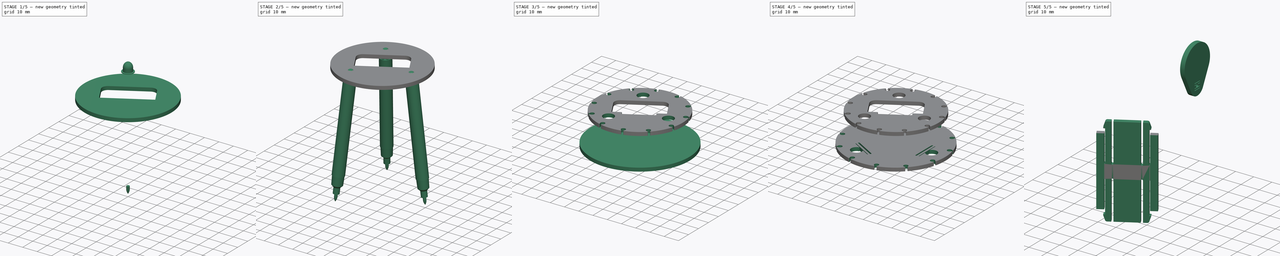
[diagram: build sequence overview — one tinted view per stage of 5, left to right]
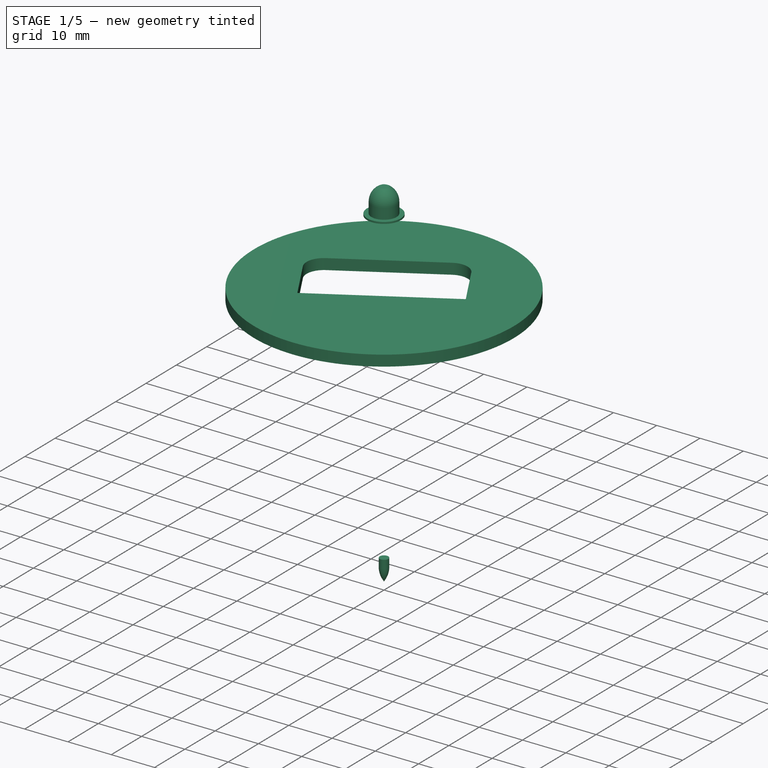
[diagram: stage 1 of 5 — iso view after this stage's code; geometry added in this stage tinted green]
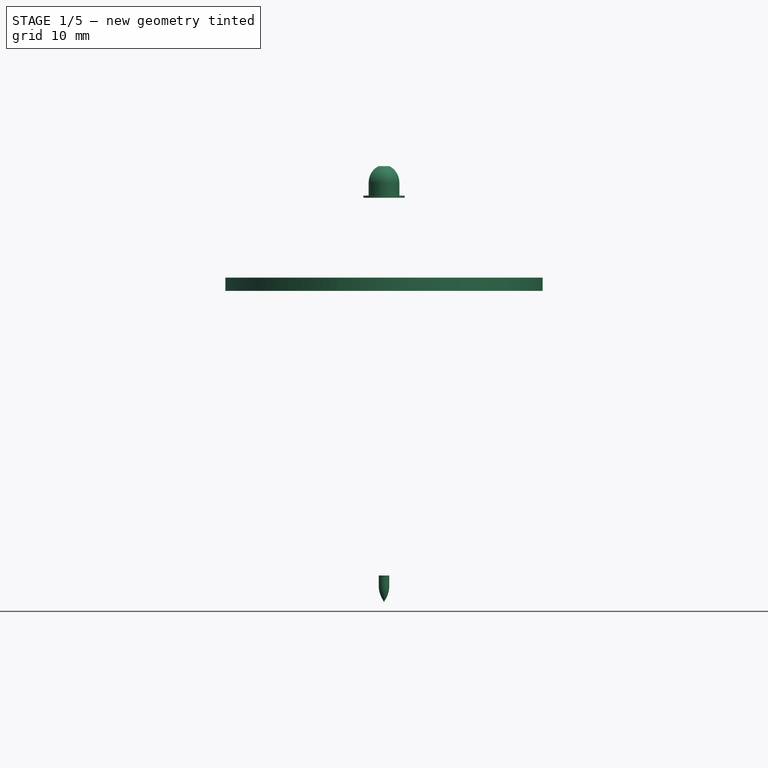
[diagram: stage 1 of 5 — front view after this stage's code; geometry added in this stage tinted green]
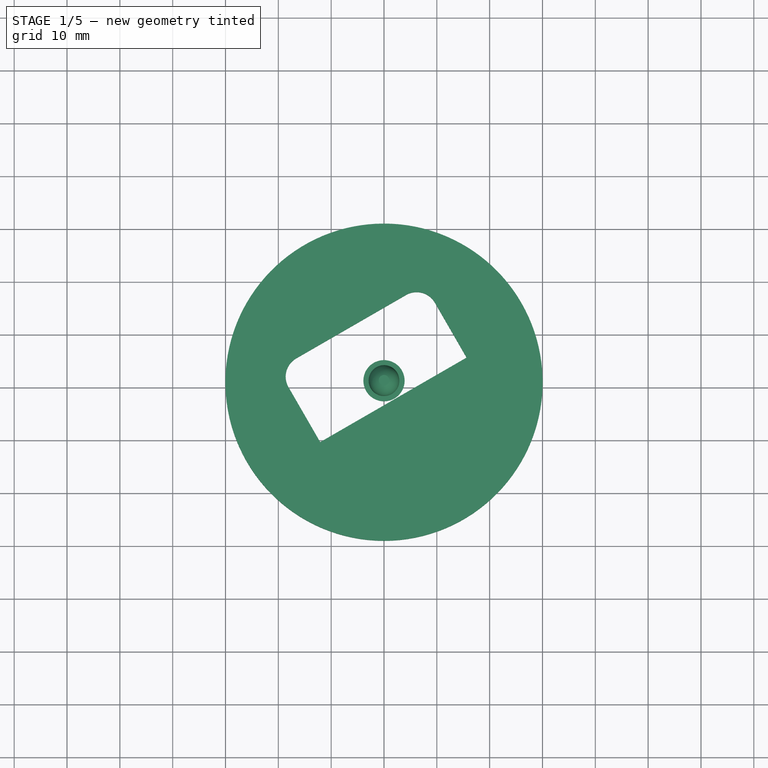
[diagram: stage 1 of 5 — top view after this stage's code; geometry added in this stage tinted green]
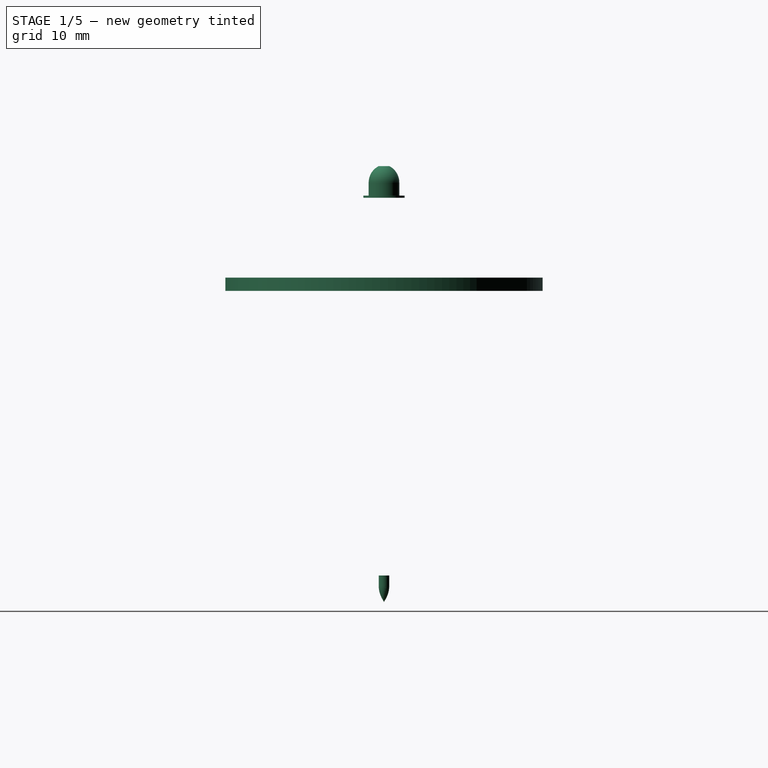
[diagram: stage 1 of 5 — right view after this stage's code; geometry added in this stage tinted green]
FCSTD DOCUMENT  (FreeCAD 0.21R33771 (Git))
Label: vibro_monster_AA
License: CERN Open Hardware Licence permissive
LicenseURL: https://cern-ohl.web.cern.ch/
objects: Sketcher::SketchObject×19, PartDesign::SubShapeBinder×10, PartDesign::Pocket×10, PartDesign::Body×9, PartDesign::Revolution×6, Part::Feature×6, Part::Part2DObjectPython×6, PartDesign::Fillet×4, TechDraw::DrawProjGroupItem×4, PartDesign::Pad×3, PartDesign::PolarPattern×3, App::Part×3, PartDesign::Boolean×1, Part::FeaturePython×1, TechDraw::DrawSVGTemplate×1, Spreadsheet::Sheet×1, TechDraw::DrawProjGroup×1, TechDraw::DrawPage×1, App::DocumentObjectGroup×1
note: 100 computed .brp shape members not serialized (recipe doc carries the construction recipe); baked Part::Feature solids carry a one-line shape summary decoded from their .brp

FEATURE [Sketcher::SketchObject] Sketch
  FullyConstrained = true
  MapMode = 5
  Placement = pos=(0,0,0) rot=(1,0,0;1.5708rad)
  Support = -> [XZ_Plane]
  sketch-geometry (9):
    g0: LineSegment StartX=0 StartY=82.365 StartZ=0 EndX=-27.5572 EndY=82.365 EndZ=0
    g1: LineSegment StartX=-27.5572 StartY=82.365 StartZ=0 EndX=-26.5 EndY=91.365 EndZ=0
    g2: LineSegment StartX=-26.5 StartY=91.365 StartZ=0 EndX=-27.5 EndY=91.365 EndZ=0
    g3: LineSegment StartX=-27.5 StartY=91.365 StartZ=0 EndX=-38 EndY=1.97956 EndZ=0
    g4: LineSegment StartX=-37.1295 StartY=0.877301 StartZ=0 EndX=-27.6747 EndY=81.365 EndZ=0
    g5: LineSegment StartX=-27.6747 StartY=81.365 StartZ=0 EndX=0 EndY=81.365 EndZ=0
    g6: LineSegment StartX=0 StartY=81.365 StartZ=0 EndX=0 EndY=82.365 EndZ=0
    g7: LineSegment StartX=-27.5572 StartY=82.365 StartZ=0 EndX=-27.6747 EndY=81.365 EndZ=0
    g8: ArcOfCircle CenterX=-38.1159 CenterY=0.993171 CenterZ=0 NormalX=0 NormalY=0 NormalZ=1 AngleXU=0 Radius=0.993171 StartAngle=1.45386 EndAngle=6.16625
  constraints (26):
    c: PointOnObject(g0,g-2)
    c: Horizontal(g0)
    c: Coincident(g0,g1)
    c: Coincident(g1,g2)
    c: Horizontal(g2)
    c: Coincident(g4,g5)
    c: Horizontal(g5)
    c: Coincident(g5,g6)
    c: Coincident(g6,g0)
    c: Vertical(g6)
    c: DistanceX(g2) = -27.5
    c: DistanceX(g2,g2) = 1
    c: Parallel(g3,g1)
    c: Parallel(g4,g3)
    c: Coincident(g7,g0)
    c: Coincident(g7,g4)
    c: Parallel(g7,g1)
    c: Distance(g1,g0) = 9
    c: DistanceY(g6,g6) = 1
    c: Coincident(g2,g3)
    c: Coincident(g8,g3)
    c: Tangent(g8,g-1)
    c: Tangent(g8,g4) = -1.5708
    c: Perpendicular(g8,g3)
    c: Distance(g3) = 90
    c: DistanceX(g3,g-1) = 38
FEATURE [PartDesign::Revolution] Revolution
  Angle = 360
  Axis = (0,2e-16,1)
  Base = (0,0,0)
  Placement = pos=(0,0,0) rot=(1,0,0;1.5708rad)
  Profile = -> Sketch
  ReferenceAxis = -> Sketch [V_Axis]
FEATURE [PartDesign::Body] Body001
  Group = -> [Sketch014,Revolution001]
  Origin = -> Origin001
  Tip = -> Revolution001
FEATURE [Sketcher::SketchObject] Sketch001
  FullyConstrained = true
  MapMode = 5
  Placement = pos=(0,0,0) rot=(0.57735,0.57735,0.57735;2.0944rad)
  Support = -> [YZ_Plane002]
  sketch-geometry (5):
    g0: LineSegment StartX=0 StartY=5 StartZ=0 EndX=0 EndY=0 EndZ=0
    g1: LineSegment StartX=0 StartY=0 StartZ=0 EndX=-0.330127 EndY=0.571797 EndZ=0
    g2: ArcOfCircle CenterX=4 CenterY=3.0718 CenterZ=0 NormalX=0 NormalY=0 NormalZ=1 AngleXU=0 Radius=5 StartAngle=3.14159 EndAngle=3.66519
    g3: LineSegment StartX=-1 StartY=3.0718 StartZ=0 EndX=-1 EndY=5 EndZ=0
    g4: LineSegment StartX=-1 StartY=5 StartZ=0 EndX=0 EndY=5 EndZ=0
  constraints (13):
    c: PointOnObject(g0,g-2)
    c: Coincident(g0,g-1)
    c: Coincident(g0,g1)
    c: Tangent(g1,g2) = 1.5708
    c: Vertical(g3)
    c: Coincident(g3,g4)
    c: Coincident(g4,g0)
    c: Horizontal(g4)
    c: DistanceY(g0,g0) = 5
    c: DistanceX(g4,g4) = 1
    c: Tangent(g2,g3) = 1.5708
    c: Angle(g0,g1) = 0.523599
    c: Radius(g2) = 5
FEATURE [PartDesign::Revolution] Revolution002
  Angle = 360
  Axis = (-2e-16,3e-16,1)
  Base = (0,0,0)
  Placement = pos=(0,0,0) rot=(0.57735,0.57735,0.57735;2.0944rad)
  Profile = -> Sketch001
  ReferenceAxis = -> Sketch001 [V_Axis]
FEATURE [PartDesign::Body] Body002  label="tip"
  Group = -> [Sketch001,Revolution002]
  Origin = -> Origin002
  Tip = -> Revolution002
FEATURE [Sketcher::SketchObject] Sketch002
  FullyConstrained = true
  MapMode = 5
  Placement = pos=(0,0,0) rot=(1,0,0;1.5708rad)
  Support = -> [XZ_Plane003]
  sketch-geometry (7):
    g0: LineSegment StartX=0 StartY=76.5 StartZ=0 EndX=-3.9 EndY=76.5 EndZ=0
    g1: LineSegment StartX=-3.9 StartY=76.5 StartZ=0 EndX=-3.9 EndY=76.9 EndZ=0
    g2: LineSegment StartX=-3.9 StartY=76.9 StartZ=0 EndX=-2.9 EndY=76.9 EndZ=0
    g3: LineSegment StartX=-2.9 StartY=76.9 StartZ=0 EndX=-2.9 EndY=79.4 EndZ=0
    g4: ArcOfCircle CenterX=0.578947 CenterY=79.4 CenterZ=0 NormalX=0 NormalY=0 NormalZ=1 AngleXU=0 Radius=3.47895 StartAngle=2.04189 EndAngle=3.14159
    g5: LineSegment StartX=-1 StartY=82.5 StartZ=0 EndX=0 EndY=82.5 EndZ=0
    g6: LineSegment StartX=0 StartY=82.5 StartZ=0 EndX=0 EndY=76.5 EndZ=0
  constraints (21):
    c: PointOnObject(g0,g-2)
    c: Horizontal(g0)
    c: Coincident(g0,g1)
    c: Vertical(g1)
    c: Coincident(g1,g2)
    c: Horizontal(g2)
    c: Coincident(g2,g3)
    c: Vertical(g3)
    c: PointOnObject(g5,g-2)
    c: Horizontal(g5)
    c: Coincident(g5,g6)
    c: Coincident(g6,g0)
    c: DistanceX(g0,g0) = 3.9
    c: DistanceY(g1,g1) = 0.4
    c: DistanceX(g2,g2) = 1
    c: DistanceY(g6,g6) = 6
    c: DistanceY(g-1,g0) = 76.5
    c: DistanceX(g5,g5) = 1
    c: Coincident(g4,g5)
    c: Tangent(g4,g3) = 1.5708
    c: DistanceY(g3,g3) = 2.5
FEATURE [PartDesign::Revolution] Revolution003
  Angle = 360
  Axis = (0,-2e-16,1)
  Base = (0,0,0)
  Placement = pos=(0,0,0) rot=(1,0,0;1.5708rad)
  Profile = -> Sketch002
  ReferenceAxis = -> Sketch002 [V_Axis]
FEATURE [PartDesign::Body] Body010  label="UnBalancer"
  Group = -> [Binder002,Sketch020,Pad002]
  Origin = -> Origin014
  Tip = -> Pad002
FEATURE [PartDesign::SubShapeBinder] Binder003
  BindCopyOnChange = 0
  BindMode = 0
  ClaimChildren = false
  Context = -> Body011 [Binder003.]
  Fuse = false
  MakeFace = true
  OffsetFill = false
  OffsetIntersection = false
  OffsetJoinType = 0
  OffsetOpenResult = false
  PartialLoad = false
  Relative = true
  Support = -> [Body]
  _Version = 2
FEATURE [PartDesign::SubShapeBinder] Binder004
  BindCopyOnChange = 0
  BindMode = 0
  ClaimChildren = false
  Context = -> Body011 [Binder004.]
  Fuse = false
  MakeFace = true
  OffsetFill = false
  OffsetIntersection = false
  OffsetJoinType = 0
  OffsetOpenResult = false
  PartialLoad = false
  Relative = true
  Support = -> [Array]
  _Version = 2
FEATURE [Sketcher::SketchObject] Sketch021
  ExternalGeometry = -> [Binder003]
  FullyConstrained = true
  MapMode = 5
  Placement = pos=(0,0,0) rot=(0.57735,0.57735,0.57735;2.0944rad)
  Support = -> [YZ_Plane015]
  expr: Constraints[8] = Spreadsheet.ply_thickness
  sketch-geometry (5):
    g0: LineSegment StartX=-30.0226 StartY=61.3773 StartZ=0 EndX=0 EndY=61.3773 EndZ=0
    g1: LineSegment StartX=0 StartY=61.3773 StartZ=0 EndX=0 EndY=58.8773 EndZ=0
    g2: LineSegment StartX=0 StartY=58.8773 StartZ=0 EndX=-30.0226 EndY=58.8773 EndZ=0
    g3: LineSegment StartX=-30.0226 StartY=58.8773 StartZ=0 EndX=-30.0226 EndY=61.3773 EndZ=0
    g4: LineSegment StartX=-37.1295 StartY=0.877301 StartZ=0 EndX=-27.6747 EndY=81.365 EndZ=0
  constraints (14):
    c: Coincident(g0,g1)
    c: Coincident(g1,g2)
    c: Coincident(g2,g3)
    c: Coincident(g3,g0)
    c: Horizontal(g0)
    c: Horizontal(g2)
    c: Vertical(g1)
    c: Vertical(g3)
    c: DistanceY(g1,g1) = 2.5
    c: PointOnObject(g0,g-2)
    c: PointOnObject(g0,g4)
    c: Coincident(g-4,g4)
    c: Coincident(g4,g-3)
    c: Distance(g1,g-3) = 58
FEATURE [PartDesign::Revolution] Revolution008
  Angle = 360
  Axis = (-2e-16,3e-16,1)
  Base = (0,0,0)
  Placement = pos=(0,0,0) rot=(0.57735,0.57735,0.57735;2.0944rad)
  Profile = -> Sketch021
  ReferenceAxis = -> Sketch021 [V_Axis]
FEATURE [Sketcher::SketchObject] Sketch027
  FullyConstrained = true
  MapMode = 5
  Placement = pos=(0,3.62e-14,82.365) rot=(0,0,1;3.14159rad)
  Support = -> [Revolution]
  sketch-geometry (1):
    g0: Circle CenterX=0 CenterY=0 CenterZ=0 NormalX=0 NormalY=0 NormalZ=1 AngleXU=0 Radius=5
  constraints (2):
    c: Diameter(g0) = 10
    c: Coincident(g-1,g0)
FEATURE [PartDesign::Pocket] Pocket004
  BaseFeature = -> Revolution
  Direction = (0,-4e-16,-1)
  Length = 5
  Length2 = 5
  Placement = pos=(0,0,0) rot=(1,0,0;1.5708rad)
  Profile = -> Sketch027
  ReferenceAxis = -> Sketch027 [N_Axis]
  Type = 1
FEATURE [Sketcher::SketchObject] Sketch024
  FullyConstrained = true
  MapMode = 5
  Placement = pos=(0,0,41) rot=(0,0,1;3.14159rad)
  Support = -> [Revolution004]
  sketch-geometry (12):
    g0: ArcOfCircle CenterX=-25 CenterY=0 CenterZ=0 NormalX=0 NormalY=0 NormalZ=1 AngleXU=0 Radius=3.8 StartAngle=0.462955 EndAngle=5.82023
    g1: ArcOfCircle CenterX=-25 CenterY=-1e-16 CenterZ=0 NormalX=0 NormalY=0 NormalZ=1 AngleXU=0 Radius=3.8 StartAngle=5.82023 EndAngle=6.74614
    g2: LineSegment StartX=-21.6 StartY=-1.69706 StartZ=0 EndX=-21.6 EndY=1.69706 EndZ=0
    g3: LineSegment StartX=-21.6 StartY=-8e-16 StartZ=0 EndX=-21.2 EndY=-8e-16 EndZ=0
    g4: LineSegment StartX=-21.6 StartY=1.69706 StartZ=0 EndX=9.33031 EndY=19.5547 EndZ=0
    g5: LineSegment StartX=9.33031 StartY=19.5547 StartZ=0 EndX=12.2697 EndY=17.8576 EndZ=0
    g6: LineSegment StartX=12.2697 StartY=17.8576 StartZ=0 EndX=12.2697 EndY=-17.8576 EndZ=0
    g7: LineSegment StartX=12.2697 StartY=-17.8576 StartZ=0 EndX=9.33031 EndY=-19.5547 EndZ=0
    g8: LineSegment StartX=9.33031 StartY=-19.5547 StartZ=0 EndX=-21.6 EndY=-1.69706 EndZ=0
    g9: ArcOfCircle CenterX=12.5 CenterY=21.6506 CenterZ=0 NormalX=0 NormalY=0 NormalZ=1 AngleXU=0 Radius=3.8 StartAngle=4.65174 EndAngle=10.009
    g10: ArcOfCircle CenterX=12.5 CenterY=-21.6506 CenterZ=0 NormalX=0 NormalY=0 NormalZ=1 AngleXU=0 Radius=3.8 StartAngle=2.55735 EndAngle=7.91463
    g11: Circle CenterX=0 CenterY=0 CenterZ=0 NormalX=0 NormalY=0 NormalZ=1 AngleXU=0 Radius=25
  constraints (34):
    c: Diameter(g0) = 7.6
    c: Tangent(g1,g0) = -1.5708
    c: Coincident(g0,g1)
    c: Coincident(g2,g0)
    c: Coincident(g2,g0)
    c: PointOnObject(g3,g1)
    c: Symmetric(g0,g0,g3)
    c: Perpendicular(g3,g2)
    c: Distance(g3) = 0.4
    c: PointOnObject(g0,g-1)
    c: Vertical(g2)
    c: Coincident(g4,g0)
    c: Coincident(g5,g4)
    c: Coincident(g6,g5)
    c: Coincident(g7,g6)
    c: Coincident(g8,g7)
    c: Coincident(g8,g0)
    c: Angle(g8,g4) = 1.0472
    c: Angle(g4,g6) = 1.0472
    c: Equal(g2,g5)
    c: Equal(g5,g7)
    c: Equal(g4,g8)
    c: Equal(g8,g6)
    c: Vertical(g6)
    c: Coincident(g11,g-1)
    c: Radius(g11) = 25
    c: PointOnObject(g0,g11)
    c: PointOnObject(g9,g11)
    c: PointOnObject(g10,g11)
    c: Equal(g9,g0)
    c: Coincident(g10,g7)
    c: Coincident(g10,g7)
    c: Coincident(g9,g5)
    c: Coincident(g9,g5)
FEATURE [PartDesign::SubShapeBinder] Binder008
  BindCopyOnChange = 0
  BindMode = 0
  ClaimChildren = false
  Context = -> Body011 [Binder008.]
  Fuse = false
  MakeFace = true
  OffsetFill = false
  OffsetIntersection = false
  OffsetJoinType = 0
  OffsetOpenResult = false
  PartialLoad = false
  Relative = true
  Support = -> [Part__Feature014]
  _Version = 2
FEATURE [Sketcher::SketchObject] Sketch022
  ExternalGeometry = -> [Binder008]
  FullyConstrained = true
  MapMode = 5
  Placement = pos=(-2.7e-14,1.72e-14,61.3773) rot=(0,0,-1;1.5708rad)
  Support = -> [Revolution008]
  sketch-geometry (7):
    g0: LineSegment StartX=-15.0474 StartY=9.6375 StartZ=0 EndX=-4.65506 EndY=15.6375 EndZ=0
    g1: LineSegment StartX=-4.65506 StartY=15.6375 StartZ=0 EndX=11.3449 EndY=-12.0753 EndZ=0
    g2: LineSegment StartX=11.3449 StartY=-12.0753 StartZ=0 EndX=0.952632 EndY=-18.0753 EndZ=0
    g3: ArcOfCircle CenterX=-1.04737 CenterY=-14.6112 CenterZ=0 NormalX=0 NormalY=0 NormalZ=1 AngleXU=0 Radius=4 StartAngle=3.66519 EndAngle=5.23599
    g4: LineSegment StartX=-4.51147 StartY=-16.6112 StartZ=0 EndX=-16.5115 EndY=4.17339 EndZ=0
    g5: ArcOfCircle CenterX=-13.0474 CenterY=6.17339 CenterZ=0 NormalX=0 NormalY=0 NormalZ=1 AngleXU=0 Radius=4 StartAngle=2.0944 EndAngle=3.66519
    g6: LineSegment StartX=3.34494 StartY=1.78109 StartZ=0 EndX=2.47891 EndY=1.28109 EndZ=0
  constraints (18):
    c: Tangent(g2,g3) = 1.5708
    c: Tangent(g4,g5) = 1.5708
    c: Tangent(g3,g4) = 1.5708
    c: Tangent(g5,g0) = 1.5708
    c: Coincident(g0,g1)
    c: Coincident(g1,g2)
    c: Equal(g3,g5)
    c: Radius(g5) = 4
    c: Perpendicular(g1,g2)
    c: Perpendicular(g1,g0)
    c: Perpendicular(g4,g0)
    c: Distance(g1) = 32
    c: Distance(g4,g1) = 16
    c: Parallel(g1,g-3)
    c: Perpendicular(g6,g1)
    c: Symmetric(g0,g1,g6)
    c: Symmetric(g-3,g-3,g6)
    c: Distance(g6) = 1
FEATURE [PartDesign::Pocket] Pocket
  BaseFeature = -> Revolution008
  Direction = (6e-16,-4e-16,-1)
  Length = 5
  Length2 = 5
  Placement = pos=(0,0,0) rot=(0.57735,0.57735,0.57735;2.0944rad)
  Profile = -> Sketch022
  ReferenceAxis = -> Sketch022 [N_Axis]
  Type = 1
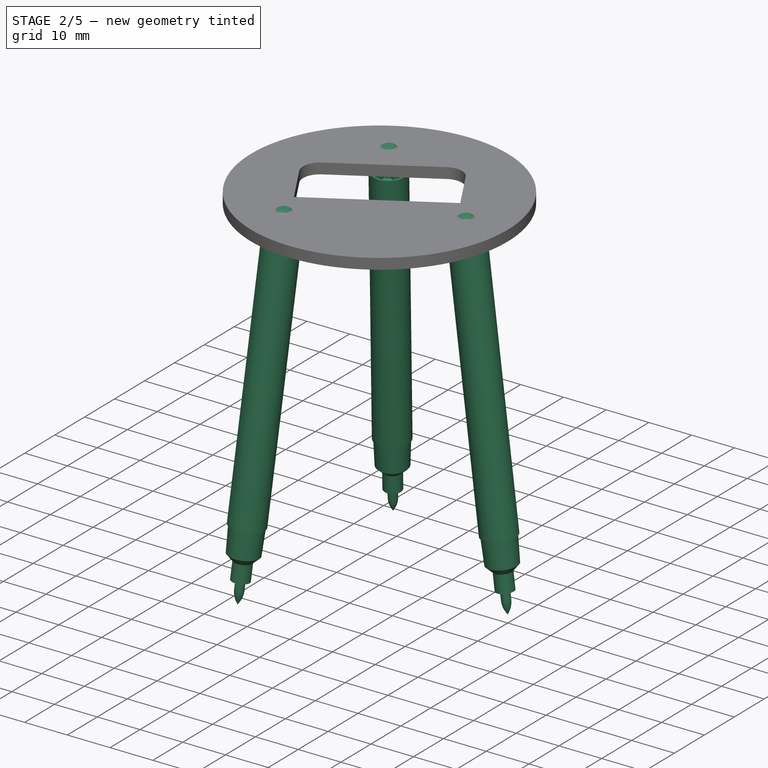
[diagram: stage 2 of 5 — iso view after this stage's code; geometry added in this stage tinted green]
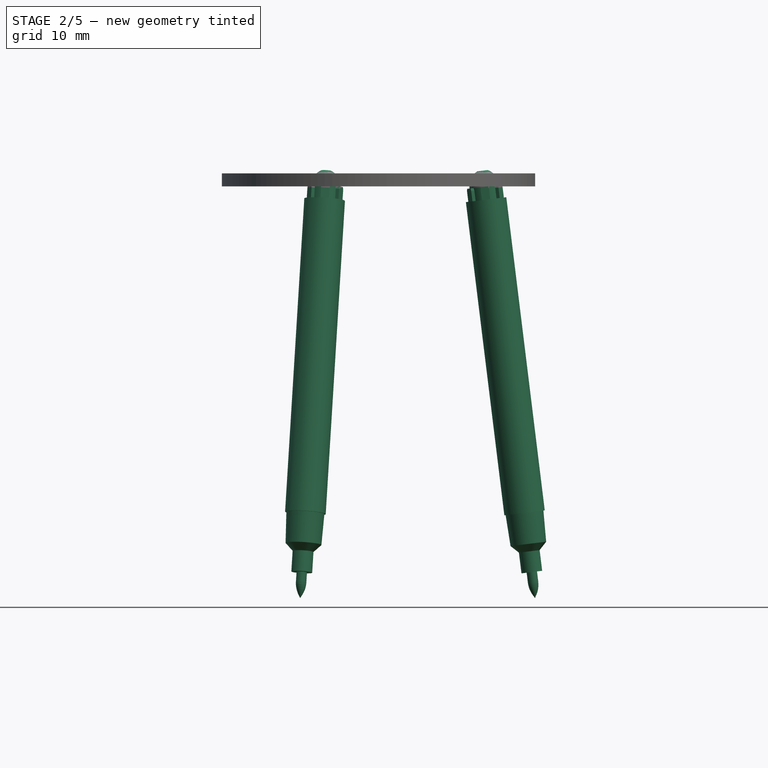
[diagram: stage 2 of 5 — front view after this stage's code; geometry added in this stage tinted green]
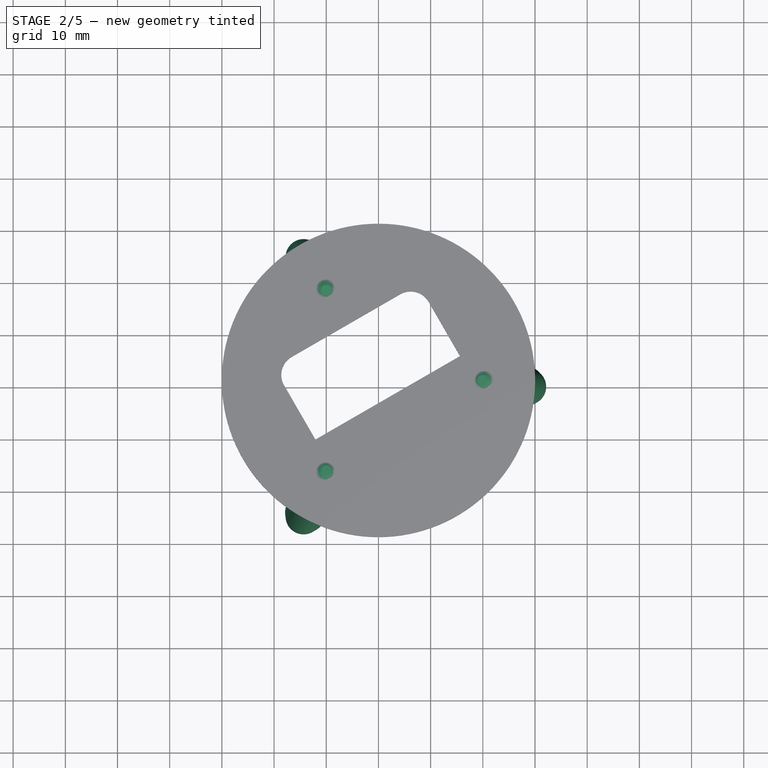
[diagram: stage 2 of 5 — top view after this stage's code; geometry added in this stage tinted green]
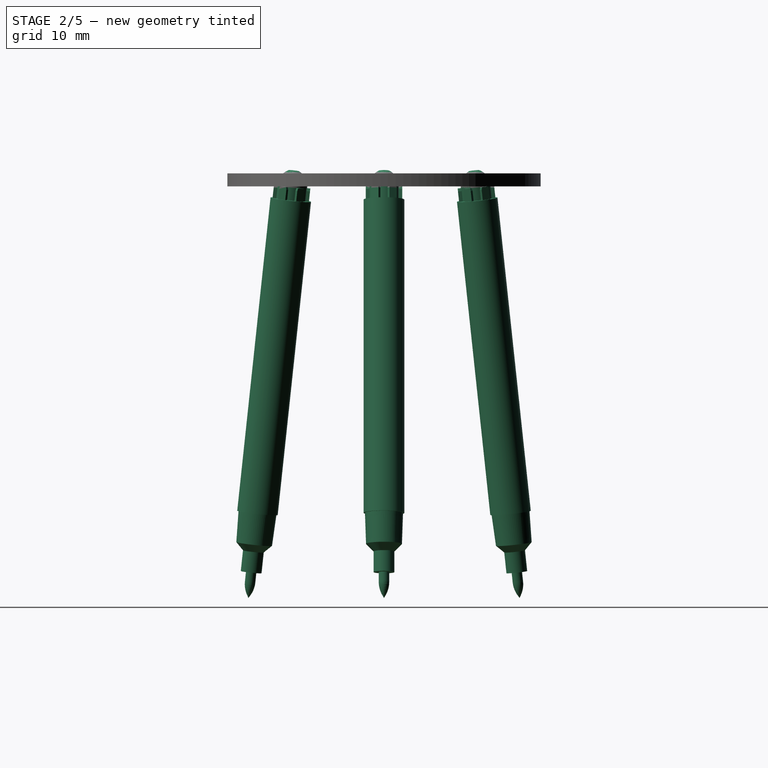
[diagram: stage 2 of 5 — right view after this stage's code; geometry added in this stage tinted green]
FEATURE [Sketcher::SketchObject] Sketch014
  FullyConstrained = true
  MapMode = 5
  Placement = pos=(0,0,0) rot=(1,0,0;1.5708rad)
  Support = -> [XZ_Plane001]
  sketch-geometry (9):
    g0: LineSegment StartX=0 StartY=76.5 StartZ=0 EndX=-3.9 EndY=76.5 EndZ=0
    g1: LineSegment StartX=-3.9 StartY=76.5 StartZ=0 EndX=-3.9 EndY=16.4369 EndZ=0
    g2: LineSegment StartX=-3.9 StartY=16.4369 StartZ=0 EndX=-3.65 EndY=16.4369 EndZ=0
    g3: LineSegment StartX=-3.65 StartY=16.4369 StartZ=0 EndX=-3.4406 EndY=10.4406 EndZ=0
    g4: LineSegment StartX=-3.4406 StartY=10.4406 StartZ=0 EndX=-2 EndY=9 EndZ=0
    g5: LineSegment StartX=-2 StartY=9 StartZ=0 EndX=-2 EndY=5 EndZ=0
    g6: LineSegment StartX=-2 StartY=5 StartZ=0 EndX=0 EndY=5 EndZ=0
    g7: LineSegment StartX=0 StartY=5 StartZ=0 EndX=0 EndY=76.5 EndZ=0
    g8: LineSegment StartX=0 StartY=5 StartZ=0 EndX=0 EndY=0 EndZ=0
  constraints (26):
    c: PointOnObject(g0,g-2)
    c: Horizontal(g0)
    c: Coincident(g0,g1)
    c: Vertical(g1)
    c: Coincident(g1,g2)
    c: Horizontal(g2)
    c: Coincident(g2,g3)
    c: Coincident(g3,g4)
    c: Coincident(g4,g5)
    c: Vertical(g5)
    c: Coincident(g5,g6)
    c: PointOnObject(g6,g-2)
    c: Horizontal(g6)
    c: Coincident(g6,g7)
    c: Coincident(g7,g0)
    c: DistanceX(g0,g0) = 3.9
    c: DistanceX(g2,g2) = 0.25
    c: DistanceX(g6,g6) = 2
    c: DistanceY(g5,g5) = 4
    c: Distance(g3) = 6
    c: Angle(g4,g5) = 2.35619
    c: Angle(g2,g3) = 1.6057
    c: Coincident(g8,g6)
    c: Coincident(g-1,g8)
    c: DistanceY(g8,g8) = 5
    c: DistanceY(g8,g0) = 76.5
FEATURE [PartDesign::Revolution] Revolution001
  Angle = 360
  Axis = (0,-2e-16,1)
  Base = (0,0,0)
  Placement = pos=(0,0,0) rot=(1,0,0;1.5708rad)
  Profile = -> Sketch014
  ReferenceAxis = -> Sketch014 [V_Axis]
FEATURE [Sketcher::SketchObject] Sketch003
  ExternalGeometry = -> [Revolution003]
  FullyConstrained = true
  MapMode = 5
  Placement = pos=(0,0,0) rot=(1,0,0;1.5708rad)
  Support = -> [XZ_Plane003]
  sketch-geometry (6):
    g0: LineSegment StartX=-0.8 StartY=76.9 StartZ=0 EndX=0.8 EndY=76.9 EndZ=0
    g1: LineSegment StartX=0.8 StartY=76.9 StartZ=0 EndX=0.8 EndY=78.9 EndZ=0
    g2: LineSegment StartX=0.8 StartY=78.9 StartZ=0 EndX=0.666025 EndY=79.4 EndZ=0
    g3: LineSegment StartX=0.666025 StartY=79.4 StartZ=0 EndX=-0.666025 EndY=79.4 EndZ=0
    g4: LineSegment StartX=-0.666025 StartY=79.4 StartZ=0 EndX=-0.8 EndY=78.9 EndZ=0
    g5: LineSegment StartX=-0.8 StartY=78.9 StartZ=0 EndX=-0.8 EndY=76.9 EndZ=0
  constraints (17):
    c: Coincident(g0,g1)
    c: Vertical(g1)
    c: Coincident(g1,g2)
    c: Coincident(g2,g3)
    c: Coincident(g3,g4)
    c: Coincident(g4,g5)
    c: Coincident(g5,g0)
    c: Vertical(g5)
    c: Symmetric(g0,g0,g-2)
    c: PointOnObject(g0,g-3)
    c: Symmetric(g3,g2,g-2)
    c: DistanceX(g0,g0) = 1.6
    c: Angle(g5,g4) = 2.87979
    c: Equal(g5,g1)
    c: DistanceY(g1,g1) = 2
    c: PointOnObject(g3,g-4)
    c: DistanceX(g-3,g-3) = 7.8
FEATURE [PartDesign::Pad] Pad
  BaseFeature = -> Revolution003
  Direction = (0,-1,-2e-16)
  Length = 3.5
  Length2 = 10
  Placement = pos=(0,0,0) rot=(1,0,0;1.5708rad)
  Profile = -> Sketch003
  ReferenceAxis = -> Sketch003 [N_Axis]
  Type = 0
FEATURE [PartDesign::PolarPattern] PolarPattern
  Angle = 360
  Axis = -> Sketch003 [V_Axis]
  BaseFeature = -> Pad
  Occurrences = 6
  Originals = -> [Pad]
  Placement = pos=(0,0,0) rot=(1,0,0;1.5708rad)
FEATURE [PartDesign::Body] Body003  label="end_cap"
  Group = -> [Sketch002,Revolution003,Sketch003,Pad,PolarPattern]
  Origin = -> Origin003
  Tip = -> PolarPattern
FEATURE [PartDesign::Boolean] Boolean
  Group = -> [Body001,Body002,Body003]
  Type = 0
FEATURE [PartDesign::Body] Body004
  Group = -> [Boolean]
  Origin = -> Origin004
  Placement = pos=(30,0,-20) rot=(0,-1,0;0.122173rad)
  Tip = -> Boolean
FEATURE [Part::FeaturePython] Array  label="Array_Pens"  # Draft array (typed FeaturePython)
  AlwaysSyncPlacement = false
  Angle = 360
  ArrayType = 1
  Axis = (0,0,1)
  Base = -> Body004
  Center = (0,0,0)
  ColoredElements = -> Array [Boolean.Face3,1.Boolean.Face3,2.Boolean.Face3,Boolean.Face49,1.Boolean.Face49,2.Boolean.Face49,0.Boolean.Face51,Boolean.Face52,1.Boolean.Face52,2.Boolean.Face52,Boolean.Face54,1.Boolean.Face54,2.Boolean.Face54,Boolean.Face55,1.Boolean.Face55,2.Boolean.Face55,Boolean.Face56,1.Boolean.Face56,2.Boolean.Face56]
  Count = 3
  ExpandArray = false
  Fuse = false
  IntervalAxis = (0,0,0)
  IntervalX = (50,0,0)
  IntervalY = (0,50,0)
  IntervalZ = (0,0,50)
  NumberCircles = 3
  NumberPolar = 3
  NumberX = 2
  NumberY = 2
  NumberZ = 1
  PlacementList = 3 placements: [(30,0,-20),(-15,25.9808,-20),(-15,-25.9808,-20)]
  RadialDistance = 50
  ScaleList = (3) [(1,1,1),(1,1,1),(1,1,1)]
  Symmetry = 1
  TangentialDistance = 25
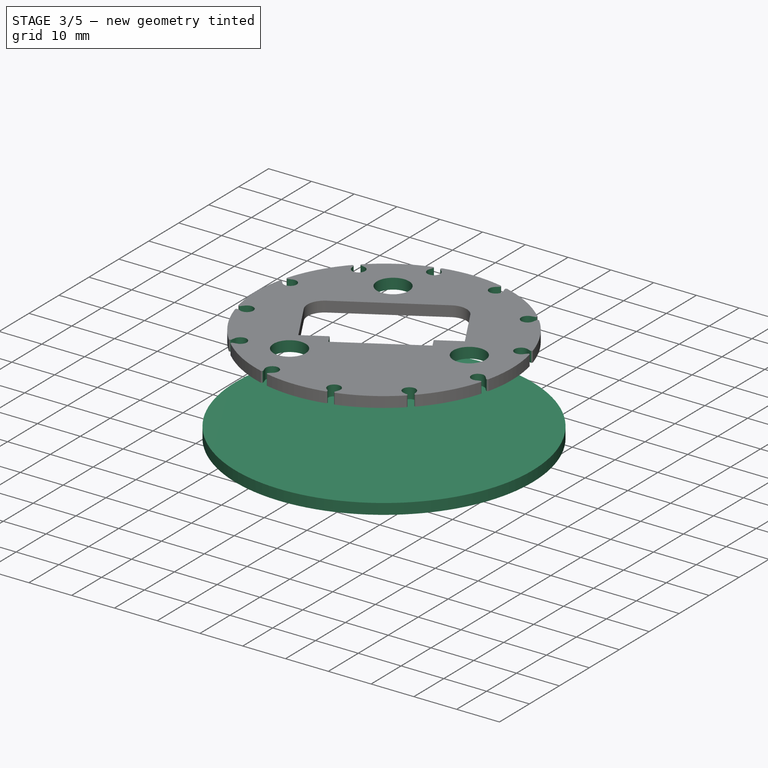
[diagram: stage 3 of 5 — iso view after this stage's code; geometry added in this stage tinted green]
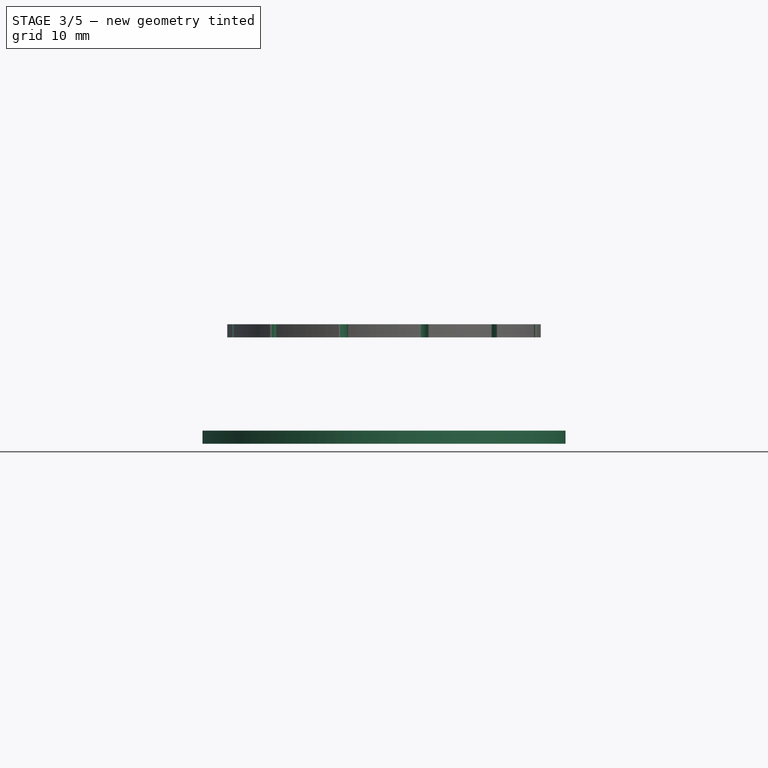
[diagram: stage 3 of 5 — front view after this stage's code; geometry added in this stage tinted green]
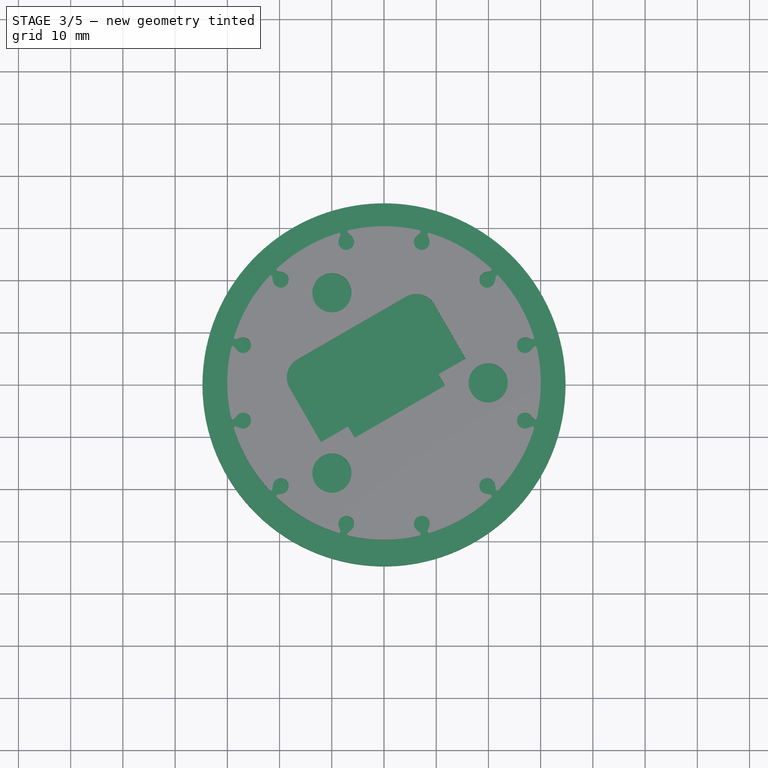
[diagram: stage 3 of 5 — top view after this stage's code; geometry added in this stage tinted green]
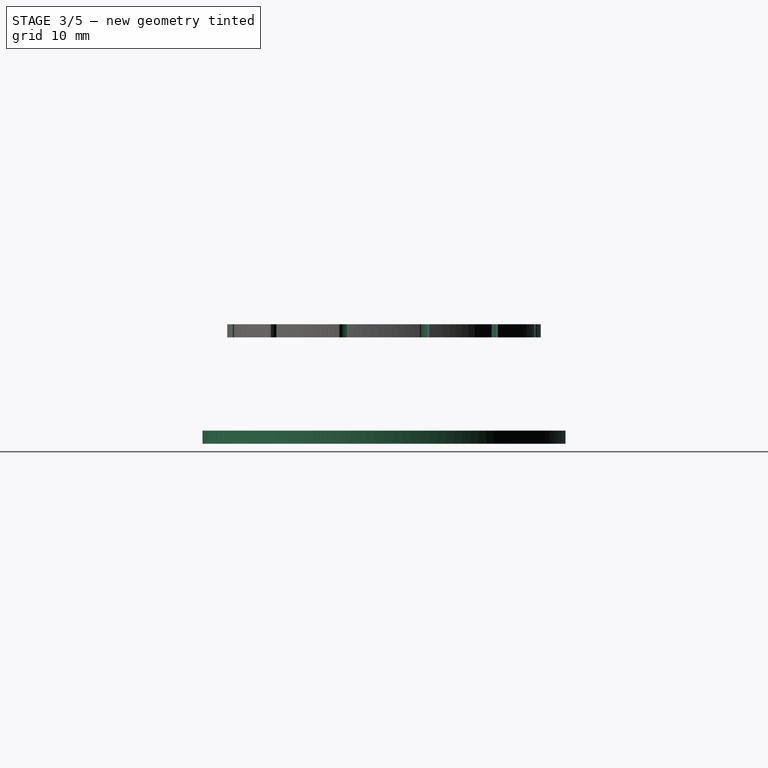
[diagram: stage 3 of 5 — right view after this stage's code; geometry added in this stage tinted green]
FEATURE [PartDesign::Body] Body  label="Cup"
  Group = -> [Sketch,Revolution,Sketch027,Pocket004]
  Origin = -> Origin
  Tip = -> Pocket004
FEATURE [Part::Part2DObjectPython] Shape2DView  label="Cup_DXF"  # Draft 2D object (typed FeaturePython)
  AutoUpdate = true
  Base = -> Body
  Clip = false
  FuseArch = false
  HiddenLines = false
  InPlace = true
  OnlySolids = false
  Projection = (0,0,1)
  ProjectionMode = 0
  SegmentLength = 0.05
  Tessellation = false
  VisibleOnly = false
FEATURE [Part::Part2DObjectPython] Shape2DView003  label="unbalancer_DXF"  # Draft 2D object (typed FeaturePython)
  AutoUpdate = true
  Base = -> Body010
  Clip = false
  FuseArch = false
  HiddenLines = false
  InPlace = true
  OnlySolids = false
  Projection = (1,0,0)
  ProjectionMode = 0
  SegmentLength = 0.05
  Tessellation = false
  VisibleOnly = false
FEATURE [Part::Feature] Part__Feature014  label="Holder_2xAA"
  Placement = pos=(1.78109,-3.34494,50.5) rot=(-0.447214,-0.774597,-0.447214;1.82348rad)
  shape: bbox 45.46 x 33.93 x 72.96 mm, 239 faces (baked)
FEATURE [PartDesign::SubShapeBinder] Binder007
  BindCopyOnChange = 0
  BindMode = 0
  ClaimChildren = false
  Context = -> Body005 [Binder007.]
  Fuse = false
  MakeFace = true
  OffsetFill = false
  OffsetIntersection = false
  OffsetJoinType = 0
  OffsetOpenResult = false
  PartialLoad = false
  Relative = true
  Support = -> [Part__Feature014]
  _Version = 2
FEATURE [Sketcher::SketchObject] Sketch015
  ExternalGeometry = -> [Binder007,Binder001]
  FullyConstrained = true
  MapMode = 5
  Placement = pos=(0,0,0) rot=(1,0,0;1.5708rad)
  Support = -> [XZ_Plane009]
  expr: Constraints[8] = Spreadsheet.ply_thickness
  sketch-geometry (4):
    g0: LineSegment StartX=0 StartY=41 StartZ=0 EndX=-34.7657 EndY=41 EndZ=0
    g1: LineSegment StartX=-34.7657 StartY=41 StartZ=0 EndX=-34.7657 EndY=38.5 EndZ=0
    g2: LineSegment StartX=-34.7657 StartY=38.5 StartZ=0 EndX=0 EndY=38.5 EndZ=0
    g3: LineSegment StartX=0 StartY=38.5 StartZ=0 EndX=0 EndY=41 EndZ=0
  constraints (12):
    c: Horizontal(g0)
    c: Coincident(g0,g1)
    c: Vertical(g1)
    c: Coincident(g1,g2)
    c: PointOnObject(g2,g-2)
    c: Horizontal(g2)
    c: Coincident(g2,g3)
    c: Coincident(g3,g0)
    c: DistanceY(g3,g3) = 2.5
    c: Vertical(g3)
    c: PointOnObject(g0,g-3)
    c: PointOnObject(g0,g-4)
FEATURE [PartDesign::Revolution] Revolution004
  Angle = 360
  Axis = (0,-2e-16,1)
  Base = (0,0,0)
  Placement = pos=(0,0,0) rot=(1,0,0;1.5708rad)
  Profile = -> Sketch015
  ReferenceAxis = -> Sketch015 [V_Axis]
FEATURE [Sketcher::SketchObject] Sketch023
  ExternalGeometry = -> [Binder004]
  FullyConstrained = true
  MapMode = 5
  Placement = pos=(-2.7e-14,1.72e-14,61.3773) rot=(0,0,-1;1.5708rad)
  Support = -> [Pocket]
  sketch-geometry (3):
    g0: Circle CenterX=-17.2736 CenterY=-9.97289 CenterZ=0 NormalX=0 NormalY=0 NormalZ=1 AngleXU=0 Radius=3.75
    g1: Circle CenterX=17.2736 CenterY=-9.97289 CenterZ=0 NormalX=0 NormalY=0 NormalZ=1 AngleXU=0 Radius=3.75
    g2: Circle CenterX=4.7e-14 CenterY=19.9458 CenterZ=0 NormalX=0 NormalY=0 NormalZ=1 AngleXU=0 Radius=3.75
  constraints (6):
    c: Equal(g0,g1)
    c: Diameter(g0) = 7.5
    c: Coincident(g0,g-3)
    c: Equal(g0,g2)
    c: Coincident(g1,g-5)
    c: Coincident(g2,g-4)
FEATURE [PartDesign::Pocket] Pocket001
  BaseFeature = -> Pocket
  Direction = (9e-16,-5e-16,-1)
  Length = 5
  Length2 = 5
  Placement = pos=(0,0,0) rot=(0.57735,0.57735,0.57735;2.0944rad)
  Profile = -> Sketch023
  ReferenceAxis = -> Sketch023 [N_Axis]
  Type = 1
FEATURE [Sketcher::SketchObject] Sketch026
  ExternalGeometry = -> [Pocket005]
  FullyConstrained = true
  MapMode = 5
  Placement = pos=(0,0,41) rot=(0,0,1;3.14159rad)
  Support = -> [Pocket005]
  sketch-geometry (33):
    g0: ArcOfCircle CenterX=-21.8 CenterY=8 CenterZ=0 NormalX=0 NormalY=0 NormalZ=1 AngleXU=0 Radius=0.2 StartAngle=-2.949e-13 EndAngle=3.14159
    g1: ArcOfCircle CenterX=-21.8 CenterY=-8 CenterZ=0 NormalX=0 NormalY=0 NormalZ=1 AngleXU=0 Radius=0.2 StartAngle=3.14159 EndAngle=6.28319
    g2: LineSegment StartX=-22 StartY=8 StartZ=0 EndX=-22 EndY=-8 EndZ=0
    g3: LineSegment StartX=-21.6 StartY=-8 StartZ=0 EndX=-21.6 EndY=8 EndZ=0
    g4: LineSegment StartX=-21.8 StartY=8 StartZ=0 EndX=-21.8 EndY=-8 EndZ=0
    g5: ArcOfCircle CenterX=17.8282 CenterY=14.8794 CenterZ=0 NormalX=0 NormalY=0 NormalZ=1 AngleXU=0 Radius=0.2 StartAngle=4.18879 EndAngle=7.33038
    g6: ArcOfCircle CenterX=3.9718 CenterY=22.8794 CenterZ=0 NormalX=0 NormalY=0 NormalZ=1 AngleXU=0 Radius=0.2 StartAngle=1.0472 EndAngle=4.18879
    g7: LineSegment StartX=17.9282 StartY=15.0526 StartZ=0 EndX=4.0718 EndY=23.0526 EndZ=0
    g8: LineSegment StartX=3.8718 StartY=22.7061 StartZ=0 EndX=17.7282 EndY=14.7061 EndZ=0
    g9: LineSegment StartX=3.9718 StartY=22.8794 StartZ=0 EndX=17.8282 EndY=14.8794 EndZ=0
    g10: ArcOfCircle CenterX=17.8282 CenterY=-14.8794 CenterZ=0 NormalX=0 NormalY=0 NormalZ=1 AngleXU=0 Radius=0.2 StartAngle=5.23599 EndAngle=8.37758
    g11: ArcOfCircle CenterX=3.9718 CenterY=-22.8794 CenterZ=0 NormalX=0 NormalY=0 NormalZ=1 AngleXU=0 Radius=0.2 StartAngle=2.0944 EndAngle=5.23599
    g12: LineSegment StartX=17.7282 StartY=-14.7061 StartZ=0 EndX=3.8718 EndY=-22.7061 EndZ=0
    g13: LineSegment StartX=4.0718 StartY=-23.0526 StartZ=0 EndX=17.9282 EndY=-15.0526 EndZ=0
    g14: LineSegment StartX=17.8282 StartY=-14.8794 StartZ=0 EndX=3.9718 EndY=-22.8794 EndZ=0
    g15: ArcOfCircle CenterX=-19.8 CenterY=8 CenterZ=0 NormalX=0 NormalY=0 NormalZ=1 AngleXU=0 Radius=0.5 StartAngle=-3.277e-13 EndAngle=3.14159
    g16: ArcOfCircle CenterX=-19.8 CenterY=-8 CenterZ=0 NormalX=0 NormalY=0 NormalZ=1 AngleXU=0 Radius=0.5 StartAngle=3.14159 EndAngle=6.28319
    g17: LineSegment StartX=-20.3 StartY=8 StartZ=0 EndX=-20.3 EndY=-8 EndZ=0
    g18: LineSegment StartX=-19.3 StartY=-8 StartZ=0 EndX=-19.3 EndY=8 EndZ=0
    g19: ArcOfCircle CenterX=16.8282 CenterY=13.1473 CenterZ=0 NormalX=0 NormalY=0 NormalZ=1 AngleXU=0 Radius=0.5 StartAngle=4.18879 EndAngle=7.33038
    g20: ArcOfCircle CenterX=2.9718 CenterY=21.1473 CenterZ=0 NormalX=0 NormalY=0 NormalZ=1 AngleXU=0 Radius=0.5 StartAngle=1.0472 EndAngle=4.18879
    g21: LineSegment StartX=17.0782 StartY=13.5803 StartZ=0 EndX=3.2218 EndY=21.5803 EndZ=0
    g22: LineSegment StartX=2.7218 StartY=20.7143 StartZ=0 EndX=16.5782 EndY=12.7143 EndZ=0
    g23: LineSegment StartX=-21.8 StartY=3.77e-14 StartZ=0 EndX=-19.8 EndY=-3.751e-13 EndZ=0
    g24: LineSegment StartX=-19.8 StartY=-8 StartZ=0 EndX=-19.8 EndY=8 EndZ=0
    g25: LineSegment StartX=10.9 StartY=18.8794 StartZ=0 EndX=9.9 EndY=17.1473 EndZ=0
    g26: LineSegment StartX=16.8282 StartY=13.1473 StartZ=0 EndX=2.9718 EndY=21.1473 EndZ=0
    g27: LineSegment StartX=10.9 StartY=-18.8794 StartZ=0 EndX=9.9 EndY=-17.1473 EndZ=0
    g28: LineSegment StartX=16.8282 StartY=-13.1473 StartZ=0 EndX=2.9718 EndY=-21.1473 EndZ=0
    g29: ArcOfCircle CenterX=16.8282 CenterY=-13.1473 CenterZ=0 NormalX=0 NormalY=0 NormalZ=1 AngleXU=0 Radius=0.5 StartAngle=5.23599 EndAngle=8.37758
    g30: ArcOfCircle CenterX=2.9718 CenterY=-21.1473 CenterZ=0 NormalX=0 NormalY=0 NormalZ=1 AngleXU=0 Radius=0.5 StartAngle=2.0944 EndAngle=5.23599
    g31: LineSegment StartX=16.5782 StartY=-12.7143 StartZ=0 EndX=2.7218 EndY=-20.7143 EndZ=0
    g32: LineSegment StartX=3.2218 StartY=-21.5803 StartZ=0 EndX=17.0782 EndY=-13.5803 EndZ=0
  constraints (75):
    c: Tangent(g1,g2) = -1.5708
    c: Tangent(g1,g3) = -1.5708
    c: Tangent(g16,g18) = -1.5708
    c: Tangent(g16,g17) = -1.5708
    c: Tangent(g15,g18) = -1.5708
    c: Tangent(g15,g17) = -1.5708
    c: Tangent(g0,g3) = -1.5708
    c: Tangent(g0,g2) = -1.5708
    c: Tangent(g6,g7) = -1.5708
    c: Tangent(g6,g8) = -1.5708
    c: Tangent(g20,g21) = -1.5708
    c: Tangent(g20,g22) = -1.5708
    c: Tangent(g19,g22) = -1.5708
    c: Tangent(g19,g21) = -1.5708
    c: Tangent(g5,g8) = -1.5708
    c: Tangent(g5,g7) = -1.5708
    c: Tangent(g10,g13) = -1.5708
    c: Tangent(g10,g12) = -1.5708
    c: Tangent(g29,g32) = -1.5708
    c: Tangent(g29,g31) = -1.5708
    c: Tangent(g11,g13) = -1.5708
    c: Tangent(g11,g12) = -1.5708
    c: Tangent(g30,g32) = -1.5708
    c: Tangent(g30,g31) = -1.5708
    c: Coincident(g1,g4)
    c: Coincident(g0,g4)
    c: Coincident(g15,g24)
    c: Coincident(g16,g24)
    c: Coincident(g11,g14)
    c: Coincident(g28,g30)
    c: Coincident(g28,g29)
    c: Coincident(g10,g14)
    c: Equal(g0,g1)
    c: Equal(g0,g11)
    c: Equal(g0,g10)
    c: Equal(g0,g6)
    c: Equal(g0,g5)
    c: Diameter(g0) = 0.4
    c: Equal(g16,g15)
    c: Equal(g16,g30)
    c: Equal(g16,g29)
    c: Equal(g16,g20)
    c: Equal(g16,g19)
    c: Diameter(g16) = 1
    c: Perpendicular(g27,g28)
    c: Perpendicular(g14,g27)
    c: Perpendicular(g23,g24)
    c: Perpendicular(g4,g23)
    c: Perpendicular(g25,g9)
    c: Perpendicular(g26,g25)
    c: Symmetric(g0,g1,g23)
    c: Symmetric(g16,g15,g23)
    c: Symmetric(g10,g11,g27)
    c: Symmetric(g29,g30,g27)
    c: Equal(g28,g14)
    c: Symmetric(g6,g5,g25)
    c: Symmetric(g20,g19,g25)
    c: Equal(g9,g26)
    c: Equal(g24,g4)
    c: Equal(g23,g27)
    c: Equal(g27,g25)
    c: Coincident(g20,g26)
    c: Coincident(g19,g26)
    c: Coincident(g6,g9)
    c: Coincident(g5,g9)
    c: Distance(g23) = 2
    c: Distance(g24) = 16
    c: Equal(g24,g28)
    c: Equal(g28,g26)
    c: PointOnObject(g-3,g3)
    c: Symmetric(g-3,g-3,g23)
    c: PointOnObject(g-4,g8)
    c: Symmetric(g-4,g-4,g25)
    c: PointOnObject(g-5,g12)
    c: Symmetric(g-5,g-5,g27)
FEATURE [Sketcher::SketchObject] Sketch029
  ExternalGeometry = -> [Pocket001]
  FullyConstrained = true
  MapMode = 5
  Placement = pos=(-2.7e-14,1.72e-14,61.3773) rot=(0,0,-1;1.5708rad)
  Support = -> [Pocket001]
  sketch-geometry (6):
    g0: ArcOfCircle CenterX=-28.7351 CenterY=7.69956 CenterZ=0 NormalX=0 NormalY=0 NormalZ=1 AngleXU=0 Radius=0.483234 StartAngle=1.9047 EndAngle=3.85489
    g1: ArcOfCircle CenterX=-26.9848 CenterY=7.23055 CenterZ=0 NormalX=0 NormalY=0 NormalZ=1 AngleXU=0 Radius=1.5 StartAngle=3.85489 EndAngle=8.18788
    g2: LineSegment StartX=-29.1006 StartY=7.38336 StartZ=0 EndX=-28.1191 EndY=6.24905 EndZ=0
    g3: LineSegment StartX=-27.4764 StartY=8.6477 StartZ=0 EndX=-28.8935 EndY=8.15611 EndZ=0
    g4: LineSegment StartX=-28.7351 StartY=7.69956 StartZ=0 EndX=-26.9848 EndY=7.23055 EndZ=0
    g5: LineSegment StartX=-26.9848 StartY=7.23055 StartZ=0 EndX=0 EndY=0 EndZ=0
  constraints (14):
    c: Tangent(g0,g2) = -1.5708
    c: Tangent(g2,g1) = -1.5708
    c: Tangent(g1,g3) = -1.5708
    c: Tangent(g3,g0) = -1.5708
    c: Coincident(g4,g0)
    c: Coincident(g4,g1)
    c: Diameter(g1) = 3
    c: Distance(g3) = 1.5
    c: Coincident(g5,g1)
    c: Coincident(g5,g-3)
    c: Parallel(g5,g4)
    c: Angle(g-1,g5) = 2.87979
    c: PointOnObject(g0,g-3)
    c: Distance(g0,g0) = 0.8
FEATURE [PartDesign::Pocket] Pocket008
  BaseFeature = -> Pocket001
  Direction = (1.2e-15,-6e-16,-1)
  Length = 5
  Length2 = 5
  Placement = pos=(0,0,0) rot=(0.57735,0.57735,0.57735;2.0944rad)
  Profile = -> Sketch029
  ReferenceAxis = -> Sketch029 [N_Axis]
  Type = 1
FEATURE [PartDesign::Fillet] Fillet001
  Base = -> Pocket008 [Edge22,Edge16]
  BaseFeature = -> Pocket008
  Placement = pos=(0,0,0) rot=(0.57735,0.57735,0.57735;2.0944rad)
  Radius = 0.3
  SupportTransform = false
  UseAllEdges = false
FEATURE [PartDesign::PolarPattern] PolarPattern003
  Angle = 360
  Axis = -> Sketch029 [N_Axis]
  BaseFeature = -> Fillet001
  Occurrences = 12
  Originals = -> [Pocket008,Fillet001]
  Placement = pos=(0,0,0) rot=(0.57735,0.57735,0.57735;2.0944rad)
FEATURE [PartDesign::Body] Body005  label="large_disk"
  Group = -> [Sketch015,Binder001,Revolution004,Sketch024,Sketch026,Binder007,Clone2D,Binder009,Pocket005,Sketch030,Pocket009,Pocket010,Fillet,PolarPattern002,Pocket011,Sketch031,Pocket012]
  Origin = -> Origin009
  Placement = pos=(0,0,-20) rot=(0,0,1;0rad)
  Tip = -> Pocket012
FEATURE [Part::Part2DObjectPython] Shape2DView005  label="large_disk_DXF"  # Draft 2D object (typed FeaturePython)
  AutoUpdate = true
  Base = -> Body005
  Clip = false
  FuseArch = false
  HiddenLines = false
  InPlace = true
  OnlySolids = false
  Projection = (0,0,-1)
  ProjectionMode = 0
  SegmentLength = 0.05
  Tessellation = false
  VisibleOnly = false
FEATURE [Sketcher::SketchObject] Sketch032
  ExternalGeometry = -> [PolarPattern003]
  FullyConstrained = true
  MapMode = 5
  Placement = pos=(-2.59e-14,1.65e-14,58.8773) rot=(0.707107,0.707107,0;3.14159rad)
  Support = -> [PolarPattern003]
  expr: Constraints[8] = Spreadsheet.ply_thickness
  sketch-geometry (5):
    g0: LineSegment StartX=1.65506 StartY=10.4413 StartZ=0 EndX=-8.34494 EndY=-6.87917 EndZ=0
    g1: LineSegment StartX=-8.34494 StartY=-6.87917 StartZ=0 EndX=-10.51 EndY=-5.62917 EndZ=0
    g2: LineSegment StartX=-10.51 StartY=-5.62917 StartZ=0 EndX=-0.51 EndY=11.6913 EndZ=0
    g3: LineSegment StartX=-0.51 StartY=11.6913 StartZ=0 EndX=1.65506 EndY=10.4413 EndZ=0
    g4: LineSegment StartX=-5.51 StartY=3.03109 StartZ=0 EndX=-3.34494 EndY=1.78109 EndZ=0
  constraints (14):
    c: Coincident(g0,g1)
    c: Coincident(g1,g2)
    c: Coincident(g2,g3)
    c: Coincident(g3,g0)
    c: Parallel(g0,g-3)
    c: Perpendicular(g0,g3)
    c: Perpendicular(g1,g0)
    c: Perpendicular(g2,g1)
    c: Distance(g3) = 2.5
    c: Distance(g0) = 20
    c: PointOnObject(g4,g2)
    c: Perpendicular(g0,g4)
    c: Symmetric(g0,g0,g4)
    c: Symmetric(g-3,g-3,g4)
FEATURE [PartDesign::Pocket] Pocket013
  BaseFeature = -> PolarPattern003
  Direction = (-1.6e-15,7e-16,1)
  Length = 5
  Length2 = 5
  Placement = pos=(0,0,0) rot=(0.57735,0.57735,0.57735;2.0944rad)
  Profile = -> Sketch032
  ReferenceAxis = -> Sketch032 [N_Axis]
  Type = 1
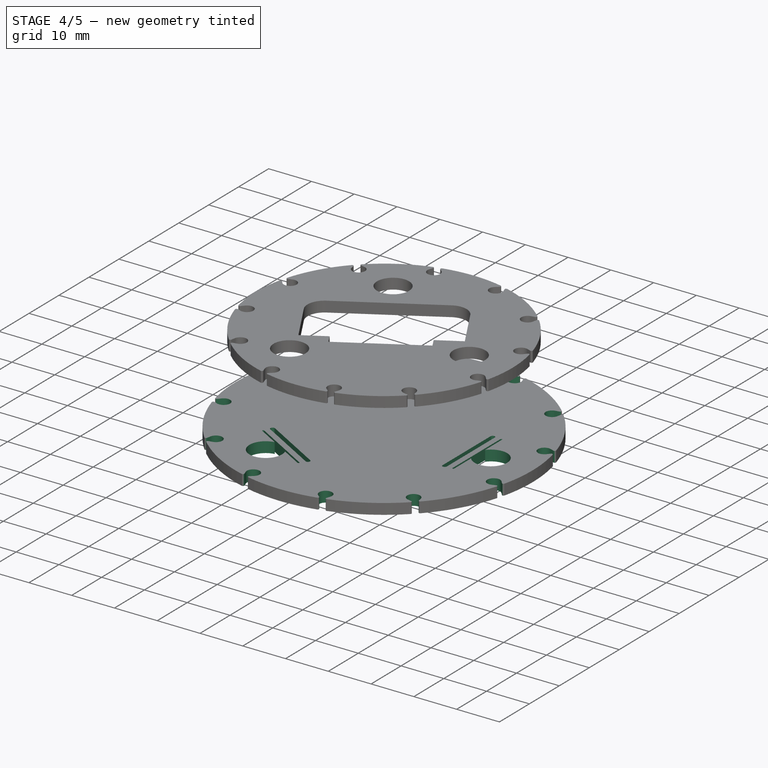
[diagram: stage 4 of 5 — iso view after this stage's code; geometry added in this stage tinted green]
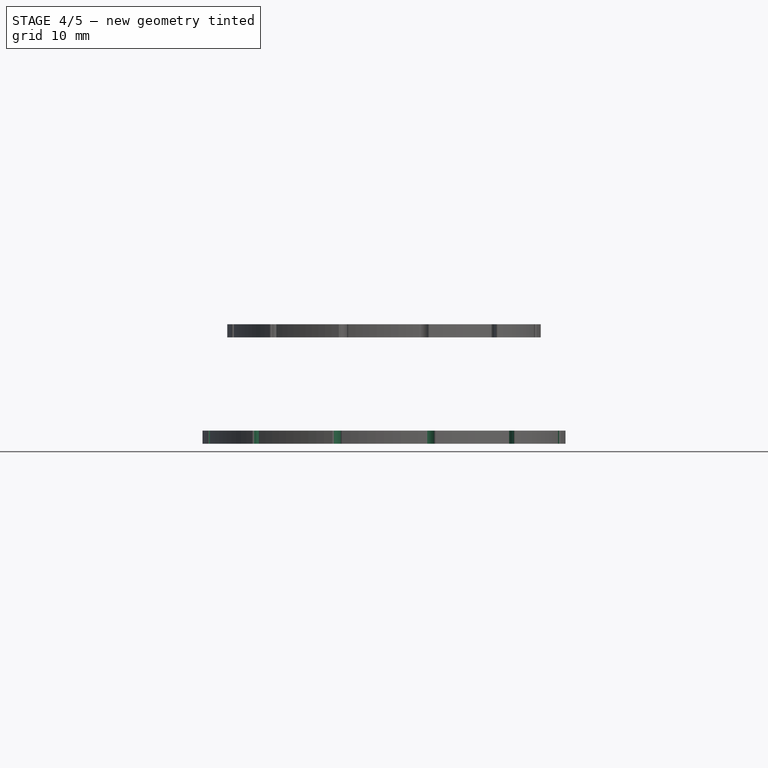
[diagram: stage 4 of 5 — front view after this stage's code; geometry added in this stage tinted green]
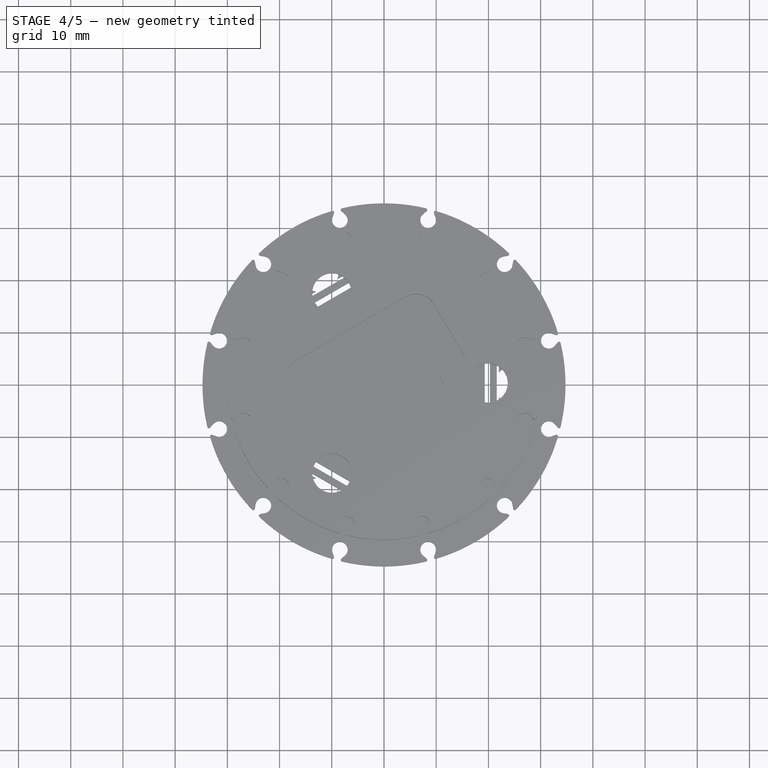
[diagram: stage 4 of 5 — top view after this stage's code; geometry added in this stage tinted green]
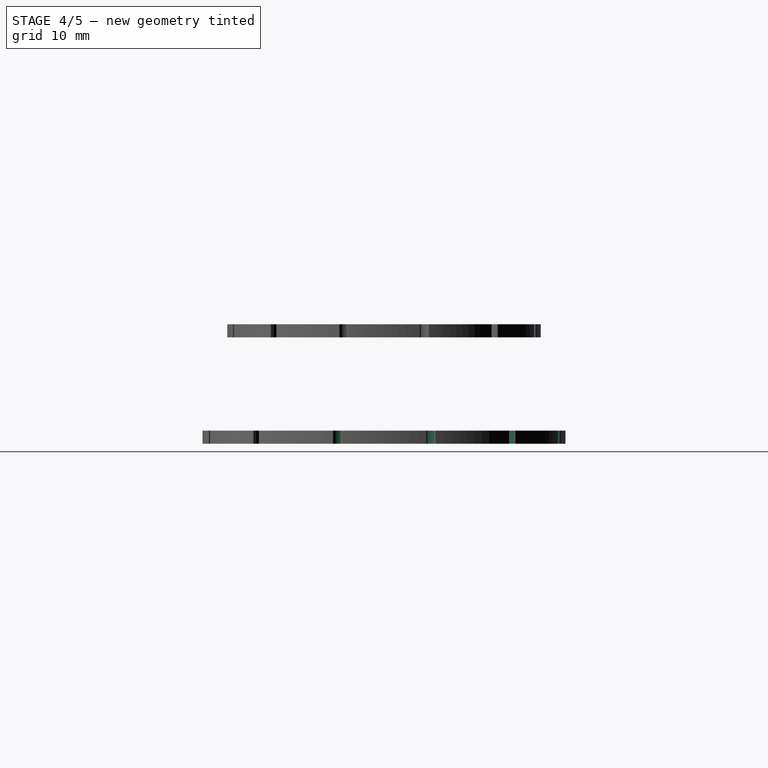
[diagram: stage 4 of 5 — right view after this stage's code; geometry added in this stage tinted green]
FEATURE [Sketcher::SketchObject] Sketch028
  FullyConstrained = false
  sketch-geometry (606):
    g0: BSplineCurve PolesCount=4 KnotsCount=2 Degree=3 IsPeriodic=0
    g1: BSplineCurve PolesCount=4 KnotsCount=2 Degree=3 IsPeriodic=0
    g2: BSplineCurve PolesCount=2 KnotsCount=2 Degree=1 IsPeriodic=0
    g3: BSplineCurve PolesCount=4 KnotsCount=2 Degree=3 IsPeriodic=0
    g4: BSplineCurve PolesCount=2 KnotsCount=2 Degree=1 IsPeriodic=0
    g5: BSplineCurve PolesCount=2 KnotsCount=2 Degree=1 IsPeriodic=0
    g6: BSplineCurve PolesCount=2 KnotsCount=2 Degree=1 IsPeriodic=0
    g7: BSplineCurve PolesCount=4 KnotsCount=2 Degree=3 IsPeriodic=0
    g8: BSplineCurve PolesCount=2 KnotsCount=2 Degree=1 IsPeriodic=0
    g9: BSplineCurve PolesCount=4 KnotsCount=2 Degree=3 IsPeriodic=0
    g10: BSplineCurve PolesCount=4 KnotsCount=2 Degree=3 IsPeriodic=0
    g11: BSplineCurve PolesCount=4 KnotsCount=2 Degree=3 IsPeriodic=0
    g12: BSplineCurve PolesCount=4 KnotsCount=2 Degree=3 IsPeriodic=0
    g13: BSplineCurve PolesCount=4 KnotsCount=2 Degree=3 IsPeriodic=0
    g14: BSplineCurve PolesCount=4 KnotsCount=2 Degree=3 IsPeriodic=0
    g15: BSplineCurve PolesCount=4 KnotsCount=2 Degree=3 IsPeriodic=0
    g16: BSplineCurve PolesCount=4 KnotsCount=2 Degree=3 IsPeriodic=0
    g17: BSplineCurve PolesCount=4 KnotsCount=2 Degree=3 IsPeriodic=0
    g18: BSplineCurve PolesCount=4 KnotsCount=2 Degree=3 IsPeriodic=0
    g19: BSplineCurve PolesCount=4 KnotsCount=2 Degree=3 IsPeriodic=0
    g20: BSplineCurve PolesCount=4 KnotsCount=2 Degree=3 IsPeriodic=0
    g21: BSplineCurve PolesCount=4 KnotsCount=2 Degree=3 IsPeriodic=0
    g22: BSplineCurve PolesCount=4 KnotsCount=2 Degree=3 IsPeriodic=0
    g23: BSplineCurve PolesCount=4 KnotsCount=2 Degree=3 IsPeriodic=0
    g24: BSplineCurve PolesCount=2 KnotsCount=2 Degree=1 IsPeriodic=0
    g25: BSplineCurve PolesCount=4 KnotsCount=2 Degree=3 IsPeriodic=0
    g26: BSplineCurve PolesCount=4 KnotsCount=2 Degree=3 IsPeriodic=0
    g27: BSplineCurve PolesCount=2 KnotsCount=2 Degree=1 IsPeriodic=0
    g28: BSplineCurve PolesCount=2 KnotsCount=2 Degree=1 IsPeriodic=0
    g29: BSplineCurve PolesCount=4 KnotsCount=2 Degree=3 IsPeriodic=0
    g30: BSplineCurve PolesCount=2 KnotsCount=2 Degree=1 IsPeriodic=0
    g31: BSplineCurve PolesCount=4 KnotsCount=2 Degree=3 IsPeriodic=0
    g32: BSplineCurve PolesCount=4 KnotsCount=2 Degree=3 IsPeriodic=0
    g33: BSplineCurve PolesCount=4 KnotsCount=2 Degree=3 IsPeriodic=0
    g34: BSplineCurve PolesCount=4 KnotsCount=2 Degree=3 IsPeriodic=0
    g35: BSplineCurve PolesCount=4 KnotsCount=2 Degree=3 IsPeriodic=0
    g36: BSplineCurve PolesCount=2 KnotsCount=2 Degree=1 IsPeriodic=0
    g37: BSplineCurve PolesCount=4 KnotsCount=2 Degree=3 IsPeriodic=0
    g38: BSplineCurve PolesCount=4 KnotsCount=2 Degree=3 IsPeriodic=0
    g39: BSplineCurve PolesCount=4 KnotsCount=2 Degree=3 IsPeriodic=0
    g40: BSplineCurve PolesCount=4 KnotsCount=2 Degree=3 IsPeriodic=0
    g41: BSplineCurve PolesCount=2 KnotsCount=2 Degree=1 IsPeriodic=0
    g42: BSplineCurve PolesCount=4 KnotsCount=2 Degree=3 IsPeriodic=0
    g43: BSplineCurve PolesCount=4 KnotsCount=2 Degree=3 IsPeriodic=0
    g44: BSplineCurve PolesCount=4 KnotsCount=2 Degree=3 IsPeriodic=0
    g45: BSplineCurve PolesCount=4 KnotsCount=2 Degree=3 IsPeriodic=0
    g46: BSplineCurve PolesCount=2 KnotsCount=2 Degree=1 IsPeriodic=0
    g47: BSplineCurve PolesCount=4 KnotsCount=2 Degree=3 IsPeriodic=0
    g48: BSplineCurve PolesCount=4 KnotsCount=2 Degree=3 IsPeriodic=0
    g49: BSplineCurve PolesCount=4 KnotsCount=2 Degree=3 IsPeriodic=0
    g50: BSplineCurve PolesCount=4 KnotsCount=2 Degree=3 IsPeriodic=0
    g51: BSplineCurve PolesCount=2 KnotsCount=2 Degree=1 IsPeriodic=0
    g52: BSplineCurve PolesCount=4 KnotsCount=2 Degree=3 IsPeriodic=0
    g53: BSplineCurve PolesCount=4 KnotsCount=2 Degree=3 IsPeriodic=0
    g54: BSplineCurve PolesCount=4 KnotsCount=2 Degree=3 IsPeriodic=0
    g55: BSplineCurve PolesCount=4 KnotsCount=2 Degree=3 IsPeriodic=0
    g56: BSplineCurve PolesCount=2 KnotsCount=2 Degree=1 IsPeriodic=0
    g57: BSplineCurve PolesCount=4 KnotsCount=2 Degree=3 IsPeriodic=0
    g58: BSplineCurve PolesCount=4 KnotsCount=2 Degree=3 IsPeriodic=0
    g59: BSplineCurve PolesCount=4 KnotsCount=2 Degree=3 IsPeriodic=0
    g60: BSplineCurve PolesCount=4 KnotsCount=2 Degree=3 IsPeriodic=0
    g61: BSplineCurve PolesCount=2 KnotsCount=2 Degree=1 IsPeriodic=0
    g62: BSplineCurve PolesCount=4 KnotsCount=2 Degree=3 IsPeriodic=0
    g63: BSplineCurve PolesCount=4 KnotsCount=2 Degree=3 IsPeriodic=0
    g64: BSplineCurve PolesCount=4 KnotsCount=2 Degree=3 IsPeriodic=0
    g65: BSplineCurve PolesCount=4 KnotsCount=2 Degree=3 IsPeriodic=0
    g66: BSplineCurve PolesCount=2 KnotsCount=2 Degree=1 IsPeriodic=0
    g67: BSplineCurve PolesCount=4 KnotsCount=2 Degree=3 IsPeriodic=0
    g68: BSplineCurve PolesCount=2 KnotsCount=2 Degree=1 IsPeriodic=0
    g69: BSplineCurve PolesCount=4 KnotsCount=2 Degree=3 IsPeriodic=0
    g70: BSplineCurve PolesCount=2 KnotsCount=2 Degree=1 IsPeriodic=0
    g71: BSplineCurve PolesCount=4 KnotsCount=2 Degree=3 IsPeriodic=0
    g72: BSplineCurve PolesCount=2 KnotsCount=2 Degree=1 IsPeriodic=0
    g73: BSplineCurve PolesCount=2 KnotsCount=2 Degree=1 IsPeriodic=0
    g74: BSplineCurve PolesCount=4 KnotsCount=2 Degree=3 IsPeriodic=0
    g75: BSplineCurve PolesCount=4 KnotsCount=2 Degree=3 IsPeriodic=0
    g76: BSplineCurve PolesCount=4 KnotsCount=2 Degree=3 IsPeriodic=0
    g77: BSplineCurve PolesCount=4 KnotsCount=2 Degree=3 IsPeriodic=0
    g78: BSplineCurve PolesCount=2 KnotsCount=2 Degree=1 IsPeriodic=0
    g79: BSplineCurve PolesCount=4 KnotsCount=2 Degree=3 IsPeriodic=0
    g80: BSplineCurve PolesCount=4 KnotsCount=2 Degree=3 IsPeriodic=0
    g81: BSplineCurve PolesCount=4 KnotsCount=2 Degree=3 IsPeriodic=0
    g82: BSplineCurve PolesCount=4 KnotsCount=2 Degree=3 IsPeriodic=0
    g83: BSplineCurve PolesCount=2 KnotsCount=2 Degree=1 IsPeriodic=0
    g84: BSplineCurve PolesCount=4 KnotsCount=2 Degree=3 IsPeriodic=0
    g85: BSplineCurve PolesCount=4 KnotsCount=2 Degree=3 IsPeriodic=0
    g86: BSplineCurve PolesCount=4 KnotsCount=2 Degree=3 IsPeriodic=0
    g87: BSplineCurve PolesCount=4 KnotsCount=2 Degree=3 IsPeriodic=0
    g88: BSplineCurve PolesCount=2 KnotsCount=2 Degree=1 IsPeriodic=0
    g89: BSplineCurve PolesCount=4 KnotsCount=2 Degree=3 IsPeriodic=0
    g90: BSplineCurve PolesCount=4 KnotsCount=2 Degree=3 IsPeriodic=0
    g91: BSplineCurve PolesCount=4 KnotsCount=2 Degree=3 IsPeriodic=0
    g92: BSplineCurve PolesCount=4 KnotsCount=2 Degree=3 IsPeriodic=0
    g93: BSplineCurve PolesCount=2 KnotsCount=2 Degree=1 IsPeriodic=0
    g94: BSplineCurve PolesCount=4 KnotsCount=2 Degree=3 IsPeriodic=0
    g95: BSplineCurve PolesCount=4 KnotsCount=2 Degree=3 IsPeriodic=0
    g96: BSplineCurve PolesCount=4 KnotsCount=2 Degree=3 IsPeriodic=0
    g97: BSplineCurve PolesCount=4 KnotsCount=2 Degree=3 IsPeriodic=0
    g98: BSplineCurve PolesCount=2 KnotsCount=2 Degree=1 IsPeriodic=0
    g99: BSplineCurve PolesCount=4 KnotsCount=2 Degree=3 IsPeriodic=0
    g100: BSplineCurve PolesCount=2 KnotsCount=2 Degree=1 IsPeriodic=0
    g101: BSplineCurve PolesCount=4 KnotsCount=2 Degree=3 IsPeriodic=0
    g102: BSplineCurve PolesCount=4 KnotsCount=2 Degree=3 IsPeriodic=0
    g103: BSplineCurve PolesCount=2 KnotsCount=2 Degree=1 IsPeriodic=0
    g104: BSplineCurve PolesCount=4 KnotsCount=2 Degree=3 IsPeriodic=0
    g105: BSplineCurve PolesCount=4 KnotsCount=2 Degree=3 IsPeriodic=0
    g106: BSplineCurve PolesCount=4 KnotsCount=2 Degree=3 IsPeriodic=0
    g107: BSplineCurve PolesCount=2 KnotsCount=2 Degree=1 IsPeriodic=0
    g108: BSplineCurve PolesCount=2 KnotsCount=2 Degree=1 IsPeriodic=0
    g109: BSplineCurve PolesCount=2 KnotsCount=2 Degree=1 IsPeriodic=0
    g110: BSplineCurve PolesCount=4 KnotsCount=2 Degree=3 IsPeriodic=0
    g111: BSplineCurve PolesCount=2 KnotsCount=2 Degree=1 IsPeriodic=0
    g112: BSplineCurve PolesCount=4 KnotsCount=2 Degree=3 IsPeriodic=0
    g113: BSplineCurve PolesCount=4 KnotsCount=2 Degree=3 IsPeriodic=0
    g114: BSplineCurve PolesCount=4 KnotsCount=2 Degree=3 IsPeriodic=0
    g115: BSplineCurve PolesCount=4 KnotsCount=2 Degree=3 IsPeriodic=0
    g116: BSplineCurve PolesCount=2 KnotsCount=2 Degree=1 IsPeriodic=0
    g117: BSplineCurve PolesCount=2 KnotsCount=2 Degree=1 IsPeriodic=0
    g118: BSplineCurve PolesCount=4 KnotsCount=2 Degree=3 IsPeriodic=0
    g119: BSplineCurve PolesCount=2 KnotsCount=2 Degree=1 IsPeriodic=0
    g120: BSplineCurve PolesCount=4 KnotsCount=2 Degree=3 IsPeriodic=0
    g121: BSplineCurve PolesCount=2 KnotsCount=2 Degree=1 IsPeriodic=0
    g122: BSplineCurve PolesCount=2 KnotsCount=2 Degree=1 IsPeriodic=0
    g123: BSplineCurve PolesCount=4 KnotsCount=2 Degree=3 IsPeriodic=0
    g124: BSplineCurve PolesCount=4 KnotsCount=2 Degree=3 IsPeriodic=0
    g125: BSplineCurve PolesCount=4 KnotsCount=2 Degree=3 IsPeriodic=0
    g126: BSplineCurve PolesCount=4 KnotsCount=2 Degree=3 IsPeriodic=0
    g127: BSplineCurve PolesCount=2 KnotsCount=2 Degree=1 IsPeriodic=0
    g128: BSplineCurve PolesCount=4 KnotsCount=2 Degree=3 IsPeriodic=0
    g129: BSplineCurve PolesCount=2 KnotsCount=2 Degree=1 IsPeriodic=0
    g130: BSplineCurve PolesCount=4 KnotsCount=2 Degree=3 IsPeriodic=0
    g131: BSplineCurve PolesCount=4 KnotsCount=2 Degree=3 IsPeriodic=0
    g132: BSplineCurve PolesCount=2 KnotsCount=2 Degree=1 IsPeriodic=0
    g133: BSplineCurve PolesCount=4 KnotsCount=2 Degree=3 IsPeriodic=0
    g134: BSplineCurve PolesCount=4 KnotsCount=2 Degree=3 IsPeriodic=0
    g135: BSplineCurve PolesCount=4 KnotsCount=2 Degree=3 IsPeriodic=0
    g136: BSplineCurve PolesCount=2 KnotsCount=2 Degree=1 IsPeriodic=0
    g137: BSplineCurve PolesCount=2 KnotsCount=2 Degree=1 IsPeriodic=0
    g138: BSplineCurve PolesCount=2 KnotsCount=2 Degree=1 IsPeriodic=0
    g139: BSplineCurve PolesCount=4 KnotsCount=2 Degree=3 IsPeriodic=0
    g140: BSplineCurve PolesCount=2 KnotsCount=2 Degree=1 IsPeriodic=0
    g141: BSplineCurve PolesCount=4 KnotsCount=2 Degree=3 IsPeriodic=0
    g142: BSplineCurve PolesCount=4 KnotsCount=2 Degree=3 IsPeriodic=0
    g143: BSplineCurve PolesCount=4 KnotsCount=2 Degree=3 IsPeriodic=0
    g144: BSplineCurve PolesCount=4 KnotsCount=2 Degree=3 IsPeriodic=0
    g145: BSplineCurve PolesCount=4 KnotsCount=2 Degree=3 IsPeriodic=0
    g146: BSplineCurve PolesCount=2 KnotsCount=2 Degree=1 IsPeriodic=0
    g147: BSplineCurve PolesCount=4 KnotsCount=2 Degree=3 IsPeriodic=0
    g148: BSplineCurve PolesCount=4 KnotsCount=2 Degree=3 IsPeriodic=0
    g149: BSplineCurve PolesCount=4 KnotsCount=2 Degree=3 IsPeriodic=0
    g150: BSplineCurve PolesCount=4 KnotsCount=2 Degree=3 IsPeriodic=0
    g151: BSplineCurve PolesCount=2 KnotsCount=2 Degree=1 IsPeriodic=0
    g152: BSplineCurve PolesCount=4 KnotsCount=2 Degree=3 IsPeriodic=0
    g153: BSplineCurve PolesCount=4 KnotsCount=2 Degree=3 IsPeriodic=0
    g154: BSplineCurve PolesCount=4 KnotsCount=2 Degree=3 IsPeriodic=0
    g155: BSplineCurve PolesCount=4 KnotsCount=2 Degree=3 IsPeriodic=0
    g156: BSplineCurve PolesCount=2 KnotsCount=2 Degree=1 IsPeriodic=0
    g157: BSplineCurve PolesCount=4 KnotsCount=2 Degree=3 IsPeriodic=0
    g158: BSplineCurve PolesCount=4 KnotsCount=2 Degree=3 IsPeriodic=0
    g159: BSplineCurve PolesCount=2 KnotsCount=2 Degree=1 IsPeriodic=0
    g160: BSplineCurve PolesCount=4 KnotsCount=2 Degree=3 IsPeriodic=0
    g161: BSplineCurve PolesCount=2 KnotsCount=2 Degree=1 IsPeriodic=0
    g162: BSplineCurve PolesCount=4 KnotsCount=2 Degree=3 IsPeriodic=0
    g163: BSplineCurve PolesCount=2 KnotsCount=2 Degree=1 IsPeriodic=0
    g164: BSplineCurve PolesCount=4 KnotsCount=2 Degree=3 IsPeriodic=0
    g165: BSplineCurve PolesCount=2 KnotsCount=2 Degree=1 IsPeriodic=0
    g166: BSplineCurve PolesCount=4 KnotsCount=2 Degree=3 IsPeriodic=0
    g167: BSplineCurve PolesCount=2 KnotsCount=2 Degree=1 IsPeriodic=0
    g168: BSplineCurve PolesCount=2 KnotsCount=2 Degree=1 IsPeriodic=0
    g169: BSplineCurve PolesCount=2 KnotsCount=2 Degree=1 IsPeriodic=0
    g170: BSplineCurve PolesCount=2 KnotsCount=2 Degree=1 IsPeriodic=0
    g171: BSplineCurve PolesCount=2 KnotsCount=2 Degree=1 IsPeriodic=0
    g172: BSplineCurve PolesCount=2 KnotsCount=2 Degree=1 IsPeriodic=0
    g173: BSplineCurve PolesCount=2 KnotsCount=2 Degree=1 IsPeriodic=0
    g174: BSplineCurve PolesCount=2 KnotsCount=2 Degree=1 IsPeriodic=0
    g175: BSplineCurve PolesCount=2 KnotsCount=2 Degree=1 IsPeriodic=0
    g176: BSplineCurve PolesCount=2 KnotsCount=2 Degree=1 IsPeriodic=0
    g177: BSplineCurve PolesCount=2 KnotsCount=2 Degree=1 IsPeriodic=0
    g178: BSplineCurve PolesCount=2 KnotsCount=2 Degree=1 IsPeriodic=0
    g179: BSplineCurve PolesCount=2 KnotsCount=2 Degree=1 IsPeriodic=0
    g180: BSplineCurve PolesCount=2 KnotsCount=2 Degree=1 IsPeriodic=0
    g181: BSplineCurve PolesCount=2 KnotsCount=2 Degree=1 IsPeriodic=0
    g182: BSplineCurve PolesCount=2 KnotsCount=2 Degree=1 IsPeriodic=0
    g183: BSplineCurve PolesCount=2 KnotsCount=2 Degree=1 IsPeriodic=0
    g184: BSplineCurve PolesCount=2 KnotsCount=2 Degree=1 IsPeriodic=0
    g185: BSplineCurve PolesCount=2 KnotsCount=2 Degree=1 IsPeriodic=0
    g186: BSplineCurve PolesCount=2 KnotsCount=2 Degree=1 IsPeriodic=0
    g187: BSplineCurve PolesCount=2 KnotsCount=2 Degree=1 IsPeriodic=0
    g188: BSplineCurve PolesCount=2 KnotsCount=2 Degree=1 IsPeriodic=0
    g189: BSplineCurve PolesCount=2 KnotsCount=2 Degree=1 IsPeriodic=0
    g190: BSplineCurve PolesCount=2 KnotsCount=2 Degree=1 IsPeriodic=0
    g191: BSplineCurve PolesCount=2 KnotsCount=2 Degree=1 IsPeriodic=0
    g192: BSplineCurve PolesCount=2 KnotsCount=2 Degree=1 IsPeriodic=0
    g193: BSplineCurve PolesCount=2 KnotsCount=2 Degree=1 IsPeriodic=0
    g194: BSplineCurve PolesCount=2 KnotsCount=2 Degree=1 IsPeriodic=0
    g195: BSplineCurve PolesCount=2 KnotsCount=2 Degree=1 IsPeriodic=0
    g196: BSplineCurve PolesCount=2 KnotsCount=2 Degree=1 IsPeriodic=0
    g197: BSplineCurve PolesCount=2 KnotsCount=2 Degree=1 IsPeriodic=0
    g198: BSplineCurve PolesCount=2 KnotsCount=2 Degree=1 IsPeriodic=0
    g199: BSplineCurve PolesCount=2 KnotsCount=2 Degree=1 IsPeriodic=0
    g200: BSplineCurve PolesCount=2 KnotsCount=2 Degree=1 IsPeriodic=0
    g201: BSplineCurve PolesCount=2 KnotsCount=2 Degree=1 IsPeriodic=0
    g202: BSplineCurve PolesCount=2 KnotsCount=2 Degree=1 IsPeriodic=0
    g203: BSplineCurve PolesCount=2 KnotsCount=2 Degree=1 IsPeriodic=0
    g204: BSplineCurve PolesCount=2 KnotsCount=2 Degree=1 IsPeriodic=0
    g205: BSplineCurve PolesCount=2 KnotsCount=2 Degree=1 IsPeriodic=0
    g206: BSplineCurve PolesCount=2 KnotsCount=2 Degree=1 IsPeriodic=0
    g207: BSplineCurve PolesCount=2 KnotsCount=2 Degree=1 IsPeriodic=0
    g208: BSplineCurve PolesCount=2 KnotsCount=2 Degree=1 IsPeriodic=0
    g209: BSplineCurve PolesCount=2 KnotsCount=2 Degree=1 IsPeriodic=0
    g210: BSplineCurve PolesCount=2 KnotsCount=2 Degree=1 IsPeriodic=0
    g211: BSplineCurve PolesCount=2 KnotsCount=2 Degree=1 IsPeriodic=0
    g212: BSplineCurve PolesCount=2 KnotsCount=2 Degree=1 IsPeriodic=0
    g213: BSplineCurve PolesCount=2 KnotsCount=2 Degree=1 IsPeriodic=0
    g214: BSplineCurve PolesCount=2 KnotsCount=2 Degree=1 IsPeriodic=0
    g215: BSplineCurve PolesCount=2 KnotsCount=2 Degree=1 IsPeriodic=0
    g216: BSplineCurve PolesCount=2 KnotsCount=2 Degree=1 IsPeriodic=0
    g217: BSplineCurve PolesCount=2 KnotsCount=2 Degree=1 IsPeriodic=0
    g218: BSplineCurve PolesCount=2 KnotsCount=2 Degree=1 IsPeriodic=0
    g219: BSplineCurve PolesCount=2 KnotsCount=2 Degree=1 IsPeriodic=0
    g220: BSplineCurve PolesCount=2 KnotsCount=2 Degree=1 IsPeriodic=0
    g221: BSplineCurve PolesCount=2 KnotsCount=2 Degree=1 IsPeriodic=0
    g222: BSplineCurve PolesCount=2 KnotsCount=2 Degree=1 IsPeriodic=0
    g223: BSplineCurve PolesCount=2 KnotsCount=2 Degree=1 IsPeriodic=0
    g224: BSplineCurve PolesCount=2 KnotsCount=2 Degree=1 IsPeriodic=0
    g225: BSplineCurve PolesCount=2 KnotsCount=2 Degree=1 IsPeriodic=0
    g226: BSplineCurve PolesCount=2 KnotsCount=2 Degree=1 IsPeriodic=0
    g227: BSplineCurve PolesCount=2 KnotsCount=2 Degree=1 IsPeriodic=0
    g228: BSplineCurve PolesCount=2 KnotsCount=2 Degree=1 IsPeriodic=0
    g229: BSplineCurve PolesCount=4 KnotsCount=2 Degree=3 IsPeriodic=0
    g230: BSplineCurve PolesCount=4 KnotsCount=2 Degree=3 IsPeriodic=0
    g231: BSplineCurve PolesCount=2 KnotsCount=2 Degree=1 IsPeriodic=0
    g232: BSplineCurve PolesCount=2 KnotsCount=2 Degree=1 IsPeriodic=0
    g233: BSplineCurve PolesCount=2 KnotsCount=2 Degree=1 IsPeriodic=0
    g234: BSplineCurve PolesCount=2 KnotsCount=2 Degree=1 IsPeriodic=0
    g235: BSplineCurve PolesCount=4 KnotsCount=2 Degree=3 IsPeriodic=0
    g236: BSplineCurve PolesCount=2 KnotsCount=2 Degree=1 IsPeriodic=0
    g237: BSplineCurve PolesCount=2 KnotsCount=2 Degree=1 IsPeriodic=0
    g238: BSplineCurve PolesCount=2 KnotsCount=2 Degree=1 IsPeriodic=0
    g239: BSplineCurve PolesCount=2 KnotsCount=2 Degree=1 IsPeriodic=0
    g240: BSplineCurve PolesCount=2 KnotsCount=2 Degree=1 IsPeriodic=0
    g241: BSplineCurve PolesCount=2 KnotsCount=2 Degree=1 IsPeriodic=0
    g242: BSplineCurve PolesCount=2 KnotsCount=2 Degree=1 IsPeriodic=0
    g243: BSplineCurve PolesCount=2 KnotsCount=2 Degree=1 IsPeriodic=0
    g244: BSplineCurve PolesCount=2 KnotsCount=2 Degree=1 IsPeriodic=0
    g245: BSplineCurve PolesCount=2 KnotsCount=2 Degree=1 IsPeriodic=0
    g246: BSplineCurve PolesCount=2 KnotsCount=2 Degree=1 IsPeriodic=0
    g247: BSplineCurve PolesCount=2 KnotsCount=2 Degree=1 IsPeriodic=0
    g248: BSplineCurve PolesCount=2 KnotsCount=2 Degree=1 IsPeriodic=0
    g249: BSplineCurve PolesCount=2 KnotsCount=2 Degree=1 IsPeriodic=0
    g250: BSplineCurve PolesCount=2 KnotsCount=2 Degree=1 IsPeriodic=0
    g251: BSplineCurve PolesCount=2 KnotsCount=2 Degree=1 IsPeriodic=0
    g252: BSplineCurve PolesCount=2 KnotsCount=2 Degree=1 IsPeriodic=0
    g253: BSplineCurve PolesCount=2 KnotsCount=2 Degree=1 IsPeriodic=0
    g254: BSplineCurve PolesCount=2 KnotsCount=2 Degree=1 IsPeriodic=0
    g255: BSplineCurve PolesCount=2 KnotsCount=2 Degree=1 IsPeriodic=0
    g256: BSplineCurve PolesCount=2 KnotsCount=2 Degree=1 IsPeriodic=0
    g257: BSplineCurve PolesCount=2 KnotsCount=2 Degree=1 IsPeriodic=0
    g258: BSplineCurve PolesCount=2 KnotsCount=2 Degree=1 IsPeriodic=0
    g259: BSplineCurve PolesCount=2 KnotsCount=2 Degree=1 IsPeriodic=0
    g260: BSplineCurve PolesCount=2 KnotsCount=2 Degree=1 IsPeriodic=0
    g261: BSplineCurve PolesCount=2 KnotsCount=2 Degree=1 IsPeriodic=0
    g262: BSplineCurve PolesCount=2 KnotsCount=2 Degree=1 IsPeriodic=0
    g263: BSplineCurve PolesCount=2 KnotsCount=2 Degree=1 IsPeriodic=0
    g264: BSplineCurve PolesCount=2 KnotsCount=2 Degree=1 IsPeriodic=0
    g265: BSplineCurve PolesCount=2 KnotsCount=2 Degree=1 IsPeriodic=0
    g266: BSplineCurve PolesCount=2 KnotsCount=2 Degree=1 IsPeriodic=0
    g267: BSplineCurve PolesCount=4 KnotsCount=2 Degree=3 IsPeriodic=0
    g268: BSplineCurve PolesCount=4 KnotsCount=2 Degree=3 IsPeriodic=0
    g269: BSplineCurve PolesCount=4 KnotsCount=2 Degree=3 IsPeriodic=0
    g270: BSplineCurve PolesCount=2 KnotsCount=2 Degree=1 IsPeriodic=0
    g271: BSplineCurve PolesCount=2 KnotsCount=2 Degree=1 IsPeriodic=0
    g272: BSplineCurve PolesCount=2 KnotsCount=2 Degree=1 IsPeriodic=0
    g273: BSplineCurve PolesCount=2 KnotsCount=2 Degree=1 IsPeriodic=0
    g274: BSplineCurve PolesCount=2 KnotsCount=2 Degree=1 IsPeriodic=0
    g275: BSplineCurve PolesCount=2 KnotsCount=2 Degree=1 IsPeriodic=0
    g276: BSplineCurve PolesCount=2 KnotsCount=2 Degree=1 IsPeriodic=0
    g277: BSplineCurve PolesCount=2 KnotsCount=2 Degree=1 IsPeriodic=0
    g278: BSplineCurve PolesCount=2 KnotsCount=2 Degree=1 IsPeriodic=0
    g279: BSplineCurve PolesCount=2 KnotsCount=2 Degree=1 IsPeriodic=0
    g280: BSplineCurve PolesCount=2 KnotsCount=2 Degree=1 IsPeriodic=0
    g281: BSplineCurve PolesCount=2 KnotsCount=2 Degree=1 IsPeriodic=0
    g282: BSplineCurve PolesCount=2 KnotsCount=2 Degree=1 IsPeriodic=0
    g283: BSplineCurve PolesCount=2 KnotsCount=2 Degree=1 IsPeriodic=0
    g284: BSplineCurve PolesCount=2 KnotsCount=2 Degree=1 IsPeriodic=0
    g285: BSplineCurve PolesCount=2 KnotsCount=2 Degree=1 IsPeriodic=0
    g286: BSplineCurve PolesCount=2 KnotsCount=2 Degree=1 IsPeriodic=0
    g287: BSplineCurve PolesCount=2 KnotsCount=2 Degree=1 IsPeriodic=0
    g288: BSplineCurve PolesCount=4 KnotsCount=2 Degree=3 IsPeriodic=0
    g289: BSplineCurve PolesCount=4 KnotsCount=2 Degree=3 IsPeriodic=0
    g290: BSplineCurve PolesCount=2 KnotsCount=2 Degree=1 IsPeriodic=0
    g291: BSplineCurve PolesCount=2 KnotsCount=2 Degree=1 IsPeriodic=0
    g292: BSplineCurve PolesCount=2 KnotsCount=2 Degree=1 IsPeriodic=0
    g293: BSplineCurve PolesCount=2 KnotsCount=2 Degree=1 IsPeriodic=0
    g294: BSplineCurve PolesCount=2 KnotsCount=2 Degree=1 IsPeriodic=0
    g295: BSplineCurve PolesCount=2 KnotsCount=2 Degree=1 IsPeriodic=0
    g296: BSplineCurve PolesCount=2 KnotsCount=2 Degree=1 IsPeriodic=0
    g297: BSplineCurve PolesCount=2 KnotsCount=2 Degree=1 IsPeriodic=0
    g298: BSplineCurve PolesCount=2 KnotsCount=2 Degree=1 IsPeriodic=0
    g299: BSplineCurve PolesCount=2 KnotsCount=2 Degree=1 IsPeriodic=0
    g300: BSplineCurve PolesCount=2 KnotsCount=2 Degree=1 IsPeriodic=0
    g301: BSplineCurve PolesCount=2 KnotsCount=2 Degree=1 IsPeriodic=0
    g302: BSplineCurve PolesCount=2 KnotsCount=2 Degree=1 IsPeriodic=0
    g303: BSplineCurve PolesCount=2 KnotsCount=2 Degree=1 IsPeriodic=0
    g304: BSplineCurve PolesCount=2 KnotsCount=2 Degree=1 IsPeriodic=0
    g305: BSplineCurve PolesCount=2 KnotsCount=2 Degree=1 IsPeriodic=0
    g306: BSplineCurve PolesCount=2 KnotsCount=2 Degree=1 IsPeriodic=0
    g307: BSplineCurve PolesCount=2 KnotsCount=2 Degree=1 IsPeriodic=0
    g308: BSplineCurve PolesCount=2 KnotsCount=2 Degree=1 IsPeriodic=0
    g309: BSplineCurve PolesCount=2 KnotsCount=2 Degree=1 IsPeriodic=0
    g310: BSplineCurve PolesCount=2 KnotsCount=2 Degree=1 IsPeriodic=0
    g311: BSplineCurve PolesCount=2 KnotsCount=2 Degree=1 IsPeriodic=0
    g312: BSplineCurve PolesCount=2 KnotsCount=2 Degree=1 IsPeriodic=0
    g313: BSplineCurve PolesCount=2 KnotsCount=2 Degree=1 IsPeriodic=0
    g314: BSplineCurve PolesCount=4 KnotsCount=2 Degree=3 IsPeriodic=0
    g315: BSplineCurve PolesCount=4 KnotsCount=2 Degree=3 IsPeriodic=0
    g316: BSplineCurve PolesCount=4 KnotsCount=2 Degree=3 IsPeriodic=0
    g317: BSplineCurve PolesCount=4 KnotsCount=2 Degree=3 IsPeriodic=0
    g318: BSplineCurve PolesCount=4 KnotsCount=2 Degree=3 IsPeriodic=0
    g319: BSplineCurve PolesCount=2 KnotsCount=2 Degree=1 IsPeriodic=0
    g320: BSplineCurve PolesCount=4 KnotsCount=2 Degree=3 IsPeriodic=0
    g321: BSplineCurve PolesCount=4 KnotsCount=2 Degree=3 IsPeriodic=0
    g322: BSplineCurve PolesCount=2 KnotsCount=2 Degree=1 IsPeriodic=0
    g323: BSplineCurve PolesCount=2 KnotsCount=2 Degree=1 IsPeriodic=0
    g324: BSplineCurve PolesCount=2 KnotsCount=2 Degree=1 IsPeriodic=0
    g325: BSplineCurve PolesCount=2 KnotsCount=2 Degree=1 IsPeriodic=0
    g326: BSplineCurve PolesCount=2 KnotsCount=2 Degree=1 IsPeriodic=0
    g327: BSplineCurve PolesCount=2 KnotsCount=2 Degree=1 IsPeriodic=0
    g328: BSplineCurve PolesCount=2 KnotsCount=2 Degree=1 IsPeriodic=0
    g329: BSplineCurve PolesCount=4 KnotsCount=2 Degree=3 IsPeriodic=0
    g330: BSplineCurve PolesCount=4 KnotsCount=2 Degree=3 IsPeriodic=0
    g331: BSplineCurve PolesCount=4 KnotsCount=2 Degree=3 IsPeriodic=0
    g332: BSplineCurve PolesCount=4 KnotsCount=2 Degree=3 IsPeriodic=0
    g333: BSplineCurve PolesCount=4 KnotsCount=2 Degree=3 IsPeriodic=0
    g334: BSplineCurve PolesCount=4 KnotsCount=2 Degree=3 IsPeriodic=0
    g335: BSplineCurve PolesCount=2 KnotsCount=2 Degree=1 IsPeriodic=0
    g336: BSplineCurve PolesCount=4 KnotsCount=2 Degree=3 IsPeriodic=0
    g337: BSplineCurve PolesCount=4 KnotsCount=2 Degree=3 IsPeriodic=0
    g338: BSplineCurve PolesCount=2 KnotsCount=2 Degree=1 IsPeriodic=0
    g339: BSplineCurve PolesCount=4 KnotsCount=2 Degree=3 IsPeriodic=0
    g340: BSplineCurve PolesCount=4 KnotsCount=2 Degree=3 IsPeriodic=0
    g341: BSplineCurve PolesCount=4 KnotsCount=2 Degree=3 IsPeriodic=0
    g342: BSplineCurve PolesCount=4 KnotsCount=2 Degree=3 IsPeriodic=0
    g343: BSplineCurve PolesCount=4 KnotsCount=2 Degree=3 IsPeriodic=0
    g344: BSplineCurve PolesCount=4 KnotsCount=2 Degree=3 IsPeriodic=0
    g345: BSplineCurve PolesCount=4 KnotsCount=2 Degree=3 IsPeriodic=0
    g346: BSplineCurve PolesCount=2 KnotsCount=2 Degree=1 IsPeriodic=0
    g347: BSplineCurve PolesCount=4 KnotsCount=2 Degree=3 IsPeriodic=0
    g348: BSplineCurve PolesCount=4 KnotsCount=2 Degree=3 IsPeriodic=0
    g349: BSplineCurve PolesCount=4 KnotsCount=2 Degree=3 IsPeriodic=0
    g350: BSplineCurve PolesCount=4 KnotsCount=2 Degree=3 IsPeriodic=0
    g351: BSplineCurve PolesCount=2 KnotsCount=2 Degree=1 IsPeriodic=0
    g352: BSplineCurve PolesCount=2 KnotsCount=2 Degree=1 IsPeriodic=0
    g353: BSplineCurve PolesCount=4 KnotsCount=2 Degree=3 IsPeriodic=0
    g354: BSplineCurve PolesCount=4 KnotsCount=2 Degree=3 IsPeriodic=0
    g355: BSplineCurve PolesCount=4 KnotsCount=2 Degree=3 IsPeriodic=0
    g356: BSplineCurve PolesCount=2 KnotsCount=2 Degree=1 IsPeriodic=0
    g357: BSplineCurve PolesCount=4 KnotsCount=2 Degree=3 IsPeriodic=0
    g358: BSplineCurve PolesCount=2 KnotsCount=2 Degree=1 IsPeriodic=0
    g359: BSplineCurve PolesCount=2 KnotsCount=2 Degree=1 IsPeriodic=0
    g360: BSplineCurve PolesCount=4 KnotsCount=2 Degree=3 IsPeriodic=0
    g361: BSplineCurve PolesCount=4 KnotsCount=2 Degree=3 IsPeriodic=0
    g362: BSplineCurve PolesCount=2 KnotsCount=2 Degree=1 IsPeriodic=0
    g363: BSplineCurve PolesCount=4 KnotsCount=2 Degree=3 IsPeriodic=0
    g364: BSplineCurve PolesCount=4 KnotsCount=2 Degree=3 IsPeriodic=0
    g365: BSplineCurve PolesCount=4 KnotsCount=2 Degree=3 IsPeriodic=0
    g366: BSplineCurve PolesCount=4 KnotsCount=2 Degree=3 IsPeriodic=0
    g367: BSplineCurve PolesCount=4 KnotsCount=2 Degree=3 IsPeriodic=0
    g368: BSplineCurve PolesCount=2 KnotsCount=2 Degree=1 IsPeriodic=0
    g369: BSplineCurve PolesCount=4 KnotsCount=2 Degree=3 IsPeriodic=0
    g370: BSplineCurve PolesCount=2 KnotsCount=2 Degree=1 IsPeriodic=0
    g371: BSplineCurve PolesCount=2 KnotsCount=2 Degree=1 IsPeriodic=0
    g372: BSplineCurve PolesCount=4 KnotsCount=2 Degree=3 IsPeriodic=0
    g373: BSplineCurve PolesCount=2 KnotsCount=2 Degree=1 IsPeriodic=0
    g374: BSplineCurve PolesCount=2 KnotsCount=2 Degree=1 IsPeriodic=0
    g375: BSplineCurve PolesCount=2 KnotsCount=2 Degree=1 IsPeriodic=0
    g376: BSplineCurve PolesCount=2 KnotsCount=2 Degree=1 IsPeriodic=0
    g377: BSplineCurve PolesCount=2 KnotsCount=2 Degree=1 IsPeriodic=0
    g378: BSplineCurve PolesCount=2 KnotsCount=2 Degree=1 IsPeriodic=0
    g379: BSplineCurve PolesCount=2 KnotsCount=2 Degree=1 IsPeriodic=0
    g380: BSplineCurve PolesCount=2 KnotsCount=2 Degree=1 IsPeriodic=0
    g381: BSplineCurve PolesCount=2 KnotsCount=2 Degree=1 IsPeriodic=0
    g382: BSplineCurve PolesCount=2 KnotsCount=2 Degree=1 IsPeriodic=0
    g383: BSplineCurve PolesCount=2 KnotsCount=2 Degree=1 IsPeriodic=0
    g384: BSplineCurve PolesCount=2 KnotsCount=2 Degree=1 IsPeriodic=0
    g385: BSplineCurve PolesCount=2 KnotsCount=2 Degree=1 IsPeriodic=0
    g386: BSplineCurve PolesCount=2 KnotsCount=2 Degree=1 IsPeriodic=0
    g387: BSplineCurve PolesCount=2 KnotsCount=2 Degree=1 IsPeriodic=0
    g388: BSplineCurve PolesCount=2 KnotsCount=2 Degree=1 IsPeriodic=0
    g389: BSplineCurve PolesCount=2 KnotsCount=2 Degree=1 IsPeriodic=0
    g390: BSplineCurve PolesCount=2 KnotsCount=2 Degree=1 IsPeriodic=0
    g391: BSplineCurve PolesCount=2 KnotsCount=2 Degree=1 IsPeriodic=0
    g392: BSplineCurve PolesCount=2 KnotsCount=2 Degree=1 IsPeriodic=0
    g393: BSplineCurve PolesCount=2 KnotsCount=2 Degree=1 IsPeriodic=0
    g394: BSplineCurve PolesCount=2 KnotsCount=2 Degree=1 IsPeriodic=0
    g395: BSplineCurve PolesCount=2 KnotsCount=2 Degree=1 IsPeriodic=0
    g396: BSplineCurve PolesCount=2 KnotsCount=2 Degree=1 IsPeriodic=0
    g397: BSplineCurve PolesCount=2 KnotsCount=2 Degree=1 IsPeriodic=0
    g398: BSplineCurve PolesCount=2 KnotsCount=2 Degree=1 IsPeriodic=0
    g399: BSplineCurve PolesCount=2 KnotsCount=2 Degree=1 IsPeriodic=0
    ... +206 more geometry lines
  constraints (606):
    c: Coincident(g0,g1)
    c: Coincident(g1,g2)
    c: Coincident(g2,g3)
    c: Coincident(g3,g4)
    c: Coincident(g4,g5)
    c: Coincident(g5,g6)
    c: Coincident(g6,g7)
    c: Coincident(g7,g8)
    c: Coincident(g8,g9)
    c: Coincident(g9,g10)
    c: Coincident(g10,g11)
    c: Coincident(g11,g12)
    c: Coincident(g12,g13)
    c: Coincident(g13,g14)
    c: Coincident(g14,g15)
    c: Coincident(g15,g16)
    c: Coincident(g16,g17)
    c: Coincident(g17,g18)
    c: Coincident(g18,g19)
    c: Coincident(g19,g20)
    c: Coincident(g20,g21)
    c: Coincident(g21,g22)
    c: Coincident(g22,g23)
    c: Coincident(g23,g0)
    c: Coincident(g24,g25)
    c: Coincident(g25,g26)
    c: Coincident(g26,g27)
    c: Coincident(g27,g28)
    c: Coincident(g28,g29)
    c: Coincident(g29,g30)
    c: Coincident(g30,g31)
    c: Coincident(g31,g32)
    c: Coincident(g32,g33)
    c: Coincident(g33,g34)
    c: Coincident(g34,g35)
    c: Coincident(g35,g36)
    c: Coincident(g36,g37)
    c: Coincident(g37,g38)
    c: Coincident(g38,g39)
    c: Coincident(g39,g40)
    c: Coincident(g40,g41)
    c: Coincident(g41,g42)
    c: Coincident(g42,g43)
    c: Coincident(g43,g44)
    c: Coincident(g44,g45)
    c: Coincident(g45,g46)
    c: Coincident(g46,g47)
    c: Coincident(g47,g48)
    c: Coincident(g48,g49)
    c: Coincident(g49,g50)
    c: Coincident(g50,g51)
    c: Coincident(g51,g52)
    c: Coincident(g52,g53)
    c: Coincident(g53,g54)
    c: Coincident(g54,g55)
    c: Coincident(g55,g56)
    c: Coincident(g56,g57)
    c: Coincident(g57,g58)
    c: Coincident(g58,g59)
    c: Coincident(g59,g60)
    c: Coincident(g60,g61)
    c: Coincident(g61,g62)
    c: Coincident(g62,g63)
    c: Coincident(g63,g64)
    c: Coincident(g64,g65)
    c: Coincident(g65,g66)
    c: Coincident(g66,g67)
    c: Coincident(g67,g68)
    c: Coincident(g68,g69)
    c: Coincident(g69,g70)
    c: Coincident(g70,g71)
    c: Coincident(g71,g72)
    c: Coincident(g72,g73)
    c: Coincident(g73,g74)
    c: Coincident(g74,g75)
    c: Coincident(g75,g76)
    c: Coincident(g76,g77)
    c: Coincident(g77,g78)
    c: Coincident(g78,g79)
    c: Coincident(g79,g80)
    c: Coincident(g80,g81)
    c: Coincident(g81,g82)
    c: Coincident(g82,g83)
    c: Coincident(g83,g84)
    c: Coincident(g84,g85)
    c: Coincident(g85,g86)
    c: Coincident(g86,g87)
    c: Coincident(g87,g88)
    c: Coincident(g88,g89)
    c: Coincident(g89,g90)
    c: Coincident(g90,g91)
    c: Coincident(g91,g92)
    c: Coincident(g92,g93)
    c: Coincident(g93,g94)
    c: Coincident(g94,g95)
    c: Coincident(g95,g96)
    c: Coincident(g96,g97)
    c: Coincident(g97,g98)
    c: Coincident(g98,g99)
    c: Coincident(g99,g100)
    c: Coincident(g100,g101)
    c: Coincident(g101,g102)
    c: Coincident(g102,g103)
    c: Coincident(g103,g104)
    c: Coincident(g104,g105)
    c: Coincident(g105,g106)
    c: Coincident(g106,g107)
    c: Coincident(g107,g108)
    c: Coincident(g108,g109)
    c: Coincident(g109,g110)
    c: Coincident(g110,g111)
    c: Coincident(g111,g112)
    c: Coincident(g112,g113)
    c: Coincident(g113,g114)
    c: Coincident(g114,g115)
    c: Coincident(g115,g116)
    c: Coincident(g116,g117)
    c: Coincident(g117,g118)
    c: Coincident(g118,g119)
    c: Coincident(g119,g120)
    c: Coincident(g120,g121)
    c: Coincident(g121,g122)
    c: Coincident(g122,g123)
    c: Coincident(g123,g124)
    c: Coincident(g124,g125)
    c: Coincident(g125,g126)
    c: Coincident(g126,g127)
    c: Coincident(g127,g128)
    c: Coincident(g128,g129)
    c: Coincident(g129,g130)
    c: Coincident(g130,g131)
    c: Coincident(g131,g132)
    c: Coincident(g132,g133)
    c: Coincident(g133,g134)
    c: Coincident(g134,g135)
    c: Coincident(g135,g136)
    c: Coincident(g136,g137)
    c: Coincident(g137,g138)
    c: Coincident(g138,g139)
    c: Coincident(g139,g140)
    c: Coincident(g140,g141)
    c: Coincident(g141,g142)
    c: Coincident(g142,g143)
    c: Coincident(g143,g144)
    c: Coincident(g144,g145)
    c: Coincident(g145,g146)
    c: Coincident(g146,g147)
    c: Coincident(g147,g148)
    c: Coincident(g148,g149)
    c: Coincident(g149,g150)
    c: Coincident(g150,g151)
    c: Coincident(g151,g152)
    c: Coincident(g152,g153)
    c: Coincident(g153,g154)
    c: Coincident(g154,g155)
    c: Coincident(g155,g156)
    c: Coincident(g156,g157)
    c: Coincident(g157,g158)
    c: Coincident(g158,g159)
    c: Coincident(g159,g160)
    c: Coincident(g160,g24)
    c: Coincident(g161,g162)
    c: Coincident(g162,g163)
    c: Coincident(g163,g164)
    c: Coincident(g164,g165)
    c: Coincident(g165,g166)
    c: Coincident(g166,g161)
    c: Coincident(g167,g168)
    c: Coincident(g168,g169)
    c: Coincident(g169,g170)
    c: Coincident(g170,g171)
    c: Coincident(g171,g172)
    c: Coincident(g172,g173)
    c: Coincident(g173,g174)
    c: Coincident(g174,g175)
    c: Coincident(g175,g176)
    c: Coincident(g176,g177)
    c: Coincident(g177,g178)
    c: Coincident(g178,g179)
    c: Coincident(g179,g180)
    c: Coincident(g180,g181)
    c: Coincident(g181,g182)
    c: Coincident(g182,g183)
    c: Coincident(g183,g184)
    c: Coincident(g184,g185)
    c: Coincident(g185,g186)
    c: Coincident(g186,g187)
    c: Coincident(g187,g188)
    c: Coincident(g188,g189)
    c: Coincident(g189,g190)
    c: Coincident(g190,g191)
    c: Coincident(g191,g192)
    c: Coincident(g192,g193)
    c: Coincident(g193,g194)
    c: Coincident(g194,g195)
    c: Coincident(g195,g196)
    c: Coincident(g196,g197)
    c: Coincident(g197,g198)
    c: Coincident(g198,g199)
    c: Coincident(g199,g200)
    c: Coincident(g200,g201)
    c: Coincident(g201,g202)
    c: Coincident(g202,g203)
    c: Coincident(g203,g204)
    c: Coincident(g204,g205)
    c: Coincident(g205,g206)
    c: Coincident(g206,g207)
    c: Coincident(g207,g208)
    c: Coincident(g208,g209)
    c: Coincident(g209,g210)
    c: Coincident(g210,g211)
    c: Coincident(g211,g212)
    c: Coincident(g212,g213)
    c: Coincident(g213,g214)
    c: Coincident(g214,g215)
    c: Coincident(g215,g216)
    c: Coincident(g216,g217)
    c: Coincident(g217,g218)
    c: Coincident(g218,g219)
    c: Coincident(g219,g220)
    c: Coincident(g220,g221)
    c: Coincident(g221,g222)
    c: Coincident(g222,g223)
    c: Coincident(g223,g224)
    c: Coincident(g224,g225)
    c: Coincident(g225,g226)
    c: Coincident(g226,g227)
    c: Coincident(g227,g228)
    c: Coincident(g228,g229)
    c: Coincident(g229,g230)
    c: Coincident(g230,g167)
    c: Coincident(g231,g232)
    c: Coincident(g232,g233)
    c: Coincident(g233,g234)
    c: Coincident(g234,g235)
    c: Coincident(g235,g236)
    c: Coincident(g236,g237)
    c: Coincident(g237,g238)
    c: Coincident(g238,g239)
    c: Coincident(g239,g240)
    c: Coincident(g240,g241)
    c: Coincident(g241,g242)
    c: Coincident(g242,g243)
    c: Coincident(g243,g244)
    c: Coincident(g244,g245)
    c: Coincident(g245,g246)
    c: Coincident(g246,g247)
    c: Coincident(g247,g248)
    c: Coincident(g248,g249)
    c: Coincident(g249,g250)
    c: Coincident(g250,g251)
    c: Coincident(g251,g252)
    c: Coincident(g252,g253)
    c: Coincident(g253,g254)
    c: Coincident(g254,g255)
    c: Coincident(g255,g256)
    c: Coincident(g256,g257)
    c: Coincident(g257,g258)
    c: Coincident(g258,g259)
    c: Coincident(g259,g260)
    c: Coincident(g260,g261)
    c: Coincident(g261,g262)
    c: Coincident(g262,g263)
    c: Coincident(g263,g264)
    c: Coincident(g264,g265)
    c: Coincident(g265,g266)
    c: Coincident(g266,g267)
    c: Coincident(g267,g268)
    c: Coincident(g268,g269)
    c: Coincident(g269,g270)
    c: Coincident(g270,g271)
    c: Coincident(g271,g272)
    c: Coincident(g272,g273)
    c: Coincident(g273,g274)
    c: Coincident(g274,g275)
    c: Coincident(g275,g276)
    c: Coincident(g276,g277)
    c: Coincident(g277,g278)
    c: Coincident(g278,g279)
    c: Coincident(g279,g280)
    c: Coincident(g280,g281)
    c: Coincident(g281,g282)
    c: Coincident(g282,g283)
    c: Coincident(g283,g284)
    c: Coincident(g284,g285)
    c: Coincident(g285,g286)
    c: Coincident(g286,g231)
    c: Coincident(g287,g288)
    c: Coincident(g288,g289)
    c: Coincident(g289,g290)
    c: Coincident(g290,g291)
    c: Coincident(g291,g292)
    c: Coincident(g292,g293)
    c: Coincident(g293,g294)
    c: Coincident(g294,g295)
    c: Coincident(g295,g296)
    c: Coincident(g296,g297)
    c: Coincident(g297,g298)
    c: Coincident(g298,g299)
    c: Coincident(g299,g300)
    c: Coincident(g300,g301)
    c: Coincident(g301,g302)
    c: Coincident(g302,g303)
    c: Coincident(g303,g304)
    c: Coincident(g304,g305)
    c: Coincident(g305,g306)
    c: Coincident(g306,g307)
    c: Coincident(g307,g308)
    c: Coincident(g308,g309)
    c: Coincident(g309,g310)
    c: Coincident(g310,g311)
    c: Coincident(g311,g312)
    c: Coincident(g312,g313)
    c: Coincident(g313,g314)
    c: Coincident(g314,g315)
    c: Coincident(g315,g316)
    c: Coincident(g316,g317)
    c: Coincident(g317,g318)
    c: Coincident(g318,g319)
    c: Coincident(g319,g320)
    c: Coincident(g320,g321)
    c: Coincident(g321,g322)
    c: Coincident(g322,g323)
    c: Coincident(g323,g324)
    c: Coincident(g324,g325)
    c: Coincident(g325,g326)
    c: Coincident(g326,g327)
    c: Coincident(g327,g328)
    c: Coincident(g328,g329)
    c: Coincident(g329,g330)
    c: Coincident(g330,g287)
    c: Coincident(g331,g332)
    c: Coincident(g332,g333)
    c: Coincident(g333,g334)
    c: Coincident(g334,g335)
    c: Coincident(g335,g336)
    c: Coincident(g336,g337)
    c: Coincident(g337,g338)
    c: Coincident(g338,g331)
    c: Coincident(g339,g340)
    c: Coincident(g340,g341)
    c: Coincident(g341,g342)
    c: Coincident(g342,g343)
    c: Coincident(g343,g344)
    c: Coincident(g344,g345)
    c: Coincident(g345,g346)
    c: Coincident(g346,g347)
    c: Coincident(g347,g348)
    c: Coincident(g348,g349)
    c: Coincident(g349,g350)
    c: Coincident(g350,g351)
    c: Coincident(g351,g352)
    c: Coincident(g352,g353)
    c: Coincident(g353,g354)
    c: Coincident(g354,g355)
    c: Coincident(g355,g356)
    c: Coincident(g356,g357)
    c: Coincident(g357,g358)
    c: Coincident(g358,g359)
    c: Coincident(g359,g339)
    c: Coincident(g360,g361)
    c: Coincident(g361,g362)
    c: Coincident(g362,g363)
    c: Coincident(g363,g364)
    c: Coincident(g364,g365)
    c: Coincident(g365,g366)
    c: Coincident(g366,g367)
    c: Coincident(g367,g368)
    c: Coincident(g368,g369)
    c: Coincident(g369,g370)
    c: Coincident(g370,g371)
    c: Coincident(g371,g372)
    c: Coincident(g372,g360)
    c: Coincident(g373,g374)
    c: Coincident(g374,g375)
    c: Coincident(g375,g376)
    c: Coincident(g376,g377)
    c: Coincident(g377,g378)
    c: Coincident(g378,g379)
    c: Coincident(g379,g380)
    c: Coincident(g380,g381)
    c: Coincident(g381,g382)
    c: Coincident(g382,g383)
    c: Coincident(g383,g384)
    c: Coincident(g384,g385)
    c: Coincident(g385,g386)
    c: Coincident(g386,g387)
    c: Coincident(g387,g388)
    c: Coincident(g388,g389)
    c: Coincident(g389,g390)
    c: Coincident(g390,g391)
    c: Coincident(g391,g392)
    c: Coincident(g392,g393)
    c: Coincident(g393,g394)
    c: Coincident(g394,g395)
    c: Coincident(g395,g396)
    c: Coincident(g396,g397)
    c: Coincident(g397,g398)
    c: Coincident(g398,g399)
    c: Coincident(g399,g400)
    c: Coincident(g400,g401)
    c: Coincident(g401,g402)
    c: Coincident(g402,g403)
    c: Coincident(g403,g404)
    c: Coincident(g404,g405)
    c: Coincident(g405,g406)
    c: Coincident(g406,g407)
    c: Coincident(g407,g408)
    c: Coincident(g408,g409)
    c: Coincident(g409,g410)
    c: Coincident(g410,g411)
    c: Coincident(g411,g412)
    c: Coincident(g412,g413)
    c: Coincident(g413,g414)
    c: Coincident(g414,g415)
    c: Coincident(g415,g416)
    c: Coincident(g416,g417)
    c: Coincident(g417,g418)
    c: Coincident(g418,g419)
    c: Coincident(g419,g420)
    c: Coincident(g420,g421)
    c: Coincident(g421,g422)
    c: Coincident(g422,g423)
    c: Coincident(g423,g424)
    c: Coincident(g424,g425)
    c: Coincident(g425,g426)
    c: Coincident(g426,g427)
    c: Coincident(g427,g428)
    c: Coincident(g428,g429)
    c: Coincident(g429,g430)
    c: Coincident(g430,g431)
    c: Coincident(g431,g432)
    c: Coincident(g432,g433)
    c: Coincident(g433,g434)
    c: Coincident(g434,g435)
    c: Coincident(g435,g436)
    c: Coincident(g436,g437)
    c: Coincident(g437,g438)
    c: Coincident(g438,g439)
    c: Coincident(g439,g440)
    c: Coincident(g440,g441)
    c: Coincident(g441,g442)
    c: Coincident(g442,g443)
    c: Coincident(g443,g444)
    c: Coincident(g444,g445)
    c: Coincident(g445,g446)
    c: Coincident(g446,g447)
    c: Coincident(g447,g448)
    c: Coincident(g448,g449)
    c: Coincident(g449,g450)
    c: Coincident(g450,g451)
    c: Coincident(g451,g452)
    c: Coincident(g452,g453)
    c: Coincident(g453,g454)
    c: Coincident(g454,g455)
    c: Coincident(g455,g456)
    c: Coincident(g456,g457)
    c: Coincident(g457,g458)
    c: Coincident(g458,g459)
    c: Coincident(g459,g460)
    c: Coincident(g460,g461)
    c: Coincident(g461,g462)
    c: Coincident(g462,g463)
    c: Coincident(g463,g464)
    c: Coincident(g464,g465)
    c: Coincident(g465,g466)
    c: Coincident(g466,g467)
    c: Coincident(g467,g468)
    c: Coincident(g468,g469)
    c: Coincident(g469,g470)
    c: Coincident(g470,g471)
    c: Coincident(g471,g472)
    c: Coincident(g472,g473)
    c: Coincident(g473,g474)
    c: Coincident(g474,g475)
    c: Coincident(g475,g476)
    c: Coincident(g476,g477)
    c: Coincident(g477,g478)
    c: Coincident(g478,g479)
    c: Coincident(g479,g480)
    c: Coincident(g480,g481)
    c: Coincident(g481,g482)
    c: Coincident(g482,g483)
    c: Coincident(g483,g484)
    c: Coincident(g484,g485)
    c: Coincident(g485,g486)
    c: Coincident(g486,g487)
    c: Coincident(g487,g488)
    c: Coincident(g488,g489)
    c: Coincident(g489,g490)
    c: Coincident(g490,g491)
    c: Coincident(g491,g492)
    c: Coincident(g492,g493)
    c: Coincident(g493,g494)
    c: Coincident(g494,g495)
    c: Coincident(g495,g496)
    c: Coincident(g496,g497)
    c: Coincident(g497,g498)
    c: Coincident(g498,g499)
    c: Coincident(g499,g500)
    c: Coincident(g500,g501)
    c: Coincident(g501,g502)
    c: Coincident(g502,g503)
    c: Coincident(g503,g504)
    c: Coincident(g504,g505)
    c: Coincident(g505,g506)
    c: Coincident(g506,g507)
    c: Coincident(g507,g508)
    c: Coincident(g508,g509)
    c: Coincident(g509,g510)
    c: Coincident(g510,g511)
    c: Coincident(g511,g512)
    c: Coincident(g512,g513)
    c: Coincident(g513,g514)
    c: Coincident(g514,g515)
    c: Coincident(g515,g516)
    c: Coincident(g516,g517)
    c: Coincident(g517,g518)
    c: Coincident(g518,g519)
    c: Coincident(g519,g520)
    c: Coincident(g520,g521)
    c: Coincident(g521,g522)
    c: Coincident(g522,g523)
    c: Coincident(g523,g524)
    c: Coincident(g524,g525)
    c: Coincident(g525,g526)
    c: Coincident(g526,g527)
    c: Coincident(g527,g528)
    c: Coincident(g528,g529)
    c: Coincident(g529,g530)
    c: Coincident(g530,g531)
    c: Coincident(g531,g532)
    c: Coincident(g532,g533)
    c: Coincident(g533,g534)
    c: Coincident(g534,g535)
    c: Coincident(g535,g536)
    c: Coincident(g536,g537)
    c: Coincident(g537,g538)
    c: Coincident(g538,g539)
    c: Coincident(g539,g540)
    c: Coincident(g540,g541)
    c: Coincident(g541,g542)
    c: Coincident(g542,g543)
    c: Coincident(g543,g544)
    c: Coincident(g544,g545)
    c: Coincident(g545,g546)
    c: Coincident(g546,g547)
    c: Coincident(g547,g548)
    c: Coincident(g548,g549)
    c: Coincident(g549,g550)
    c: Coincident(g550,g551)
    c: Coincident(g551,g552)
    c: Coincident(g552,g553)
    c: Coincident(g553,g554)
    c: Coincident(g554,g555)
    c: Coincident(g555,g556)
    c: Coincident(g556,g557)
    c: Coincident(g557,g558)
    c: Coincident(g558,g559)
    c: Coincident(g559,g560)
    c: Coincident(g560,g561)
    c: Coincident(g561,g562)
    c: Coincident(g562,g563)
    c: Coincident(g563,g564)
    c: Coincident(g564,g565)
    c: Coincident(g565,g566)
    c: Coincident(g566,g567)
    c: Coincident(g567,g568)
    c: Coincident(g568,g569)
    c: Coincident(g569,g570)
    c: Coincident(g570,g571)
    c: Coincident(g571,g572)
    c: Coincident(g572,g573)
    c: Coincident(g573,g574)
    c: Coincident(g574,g575)
    c: Coincident(g575,g576)
    c: Coincident(g576,g577)
    c: Coincident(g577,g578)
    c: Coincident(g578,g579)
    c: Coincident(g579,g580)
    c: Coincident(g580,g581)
    c: Coincident(g581,g582)
    c: Coincident(g582,g583)
    c: Coincident(g583,g584)
    c: Coincident(g584,g585)
    c: Coincident(g585,g586)
    c: Coincident(g586,g587)
    c: Coincident(g587,g588)
    c: Coincident(g588,g589)
    c: Coincident(g589,g590)
    c: Coincident(g590,g591)
    c: Coincident(g591,g592)
    c: Coincident(g592,g593)
    c: Coincident(g593,g594)
    c: Coincident(g594,g595)
    c: Coincident(g595,g596)
    c: Coincident(g596,g597)
    c: Coincident(g597,g598)
    c: Coincident(g598,g599)
    c: Coincident(g599,g600)
    c: Coincident(g600,g601)
    c: Coincident(g601,g602)
    c: Coincident(g602,g603)
    c: Coincident(g603,g604)
    c: Coincident(g604,g605)
    c: Coincident(g605,g373)
FEATURE [TechDraw::DrawSVGTemplate] Template
  Height = 297
  Orientation = 0
  Template = <userpath>/Documents/FreeCAD/Templates/A4_Portrait_blank.svg
  Width = 210
FEATURE [PartDesign::SubShapeBinder] Binder009
  BindCopyOnChange = 0
  BindMode = 0
  ClaimChildren = false
  Context = -> Body005 [Binder009.]
  Fuse = false
  MakeFace = true
  OffsetFill = false
  OffsetIntersection = false
  OffsetJoinType = 0
  OffsetOpenResult = false
  PartialLoad = false
  Relative = true
  Support = -> [Array]
  _Version = 2
FEATURE [PartDesign::Pocket] Pocket005
  BaseFeature = -> Revolution004
  Direction = (0,2e-16,-1)
  Length = 5
  Length2 = 5
  Placement = pos=(0,0,0) rot=(1,0,0;1.5708rad)
  Profile = -> Sketch024
  ReferenceAxis = -> Sketch024 [N_Axis]
  Refine = true
  Type = 1
FEATURE [PartDesign::Pocket] Pocket009
  BaseFeature = -> Pocket005
  Direction = (0,2e-16,-1)
  Length = 5
  Length2 = 5
  Placement = pos=(0,0,0) rot=(1,0,0;1.5708rad)
  Profile = -> Sketch026
  ReferenceAxis = -> Sketch026 [N_Axis]
  Type = 1
FEATURE [Sketcher::SketchObject] Sketch030
  ExternalGeometry = -> [Pocket009]
  FullyConstrained = true
  MapMode = 5
  Placement = pos=(0,0,41) rot=(0,0,1;3.14159rad)
  Support = -> [Pocket009]
  sketch-geometry (6):
    g0: ArcOfCircle CenterX=-33.317 CenterY=8.92725 CenterZ=0 NormalX=0 NormalY=0 NormalZ=1 AngleXU=0 Radius=0.483234 StartAngle=1.9047 EndAngle=3.85489
    g1: ArcOfCircle CenterX=-31.5666 CenterY=8.45824 CenterZ=0 NormalX=0 NormalY=0 NormalZ=1 AngleXU=0 Radius=1.5 StartAngle=3.85489 EndAngle=8.18788
    g2: LineSegment StartX=-33.6824 StartY=8.61106 StartZ=0 EndX=-32.7009 EndY=7.47674 EndZ=0
    g3: LineSegment StartX=-32.0582 StartY=9.87539 StartZ=0 EndX=-33.4753 EndY=9.3838 EndZ=0
    g4: LineSegment StartX=0 StartY=-1.81e-14 StartZ=0 EndX=-31.5666 EndY=8.45824 EndZ=0
    g5: LineSegment StartX=-32.0582 StartY=9.87539 StartZ=0 EndX=-32.7009 EndY=7.47674 EndZ=0
  constraints (14):
    c: Tangent(g0,g2) = -1.5708
    c: Tangent(g2,g1) = -1.5708
    c: Tangent(g1,g3) = -1.5708
    c: Tangent(g3,g0) = -1.5708
    c: Diameter(g1) = 3
    c: Distance(g3) = 1.5
    c: Coincident(g4,g-3)
    c: Coincident(g4,g1)
    c: Perpendicular(g4,g5)
    c: Coincident(g5,g1)
    c: Coincident(g5,g1)
    c: Angle(g-1,g4) = 2.87979
    c: PointOnObject(g0,g-3)
    c: Distance(g0,g0) = 0.8
FEATURE [PartDesign::Pocket] Pocket010
  BaseFeature = -> Pocket009
  Direction = (0,2e-16,-1)
  Length = 5
  Length2 = 5
  Placement = pos=(0,0,0) rot=(1,0,0;1.5708rad)
  Profile = -> Sketch030
  ReferenceAxis = -> Sketch030 [N_Axis]
  Type = 1
FEATURE [PartDesign::Fillet] Fillet
  Base = -> Pocket010 [Edge44,Edge50]
  BaseFeature = -> Pocket010
  Placement = pos=(0,0,0) rot=(1,0,0;1.5708rad)
  Radius = 0.3
  SupportTransform = false
  UseAllEdges = false
FEATURE [PartDesign::PolarPattern] PolarPattern002
  Angle = 360
  Axis = -> Sketch030 [N_Axis]
  BaseFeature = -> Fillet
  Occurrences = 12
  Originals = -> [Pocket010,Fillet]
  Placement = pos=(0,0,0) rot=(1,0,0;1.5708rad)
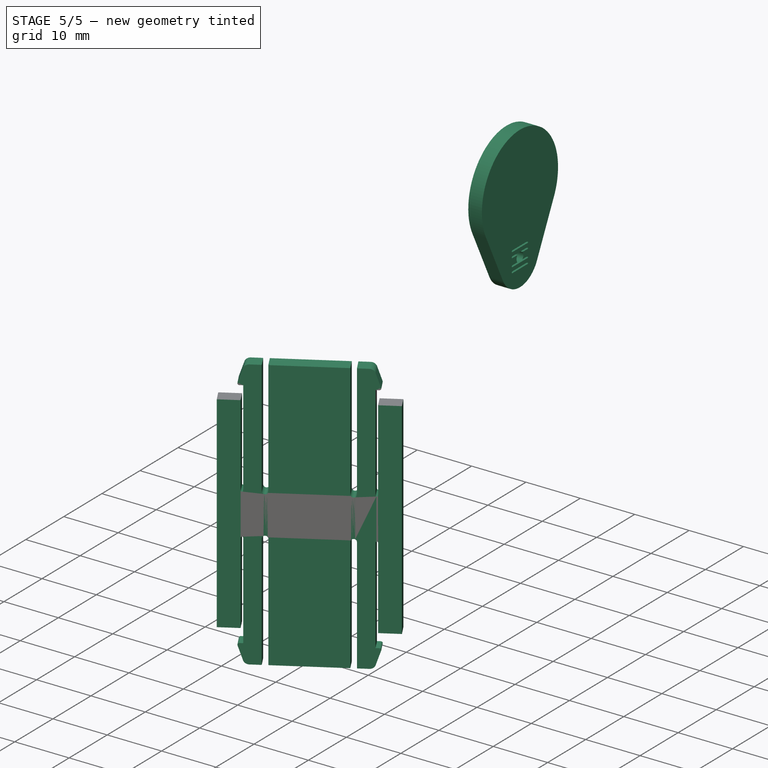
[diagram: stage 5 of 5 — iso view after this stage's code; geometry added in this stage tinted green]
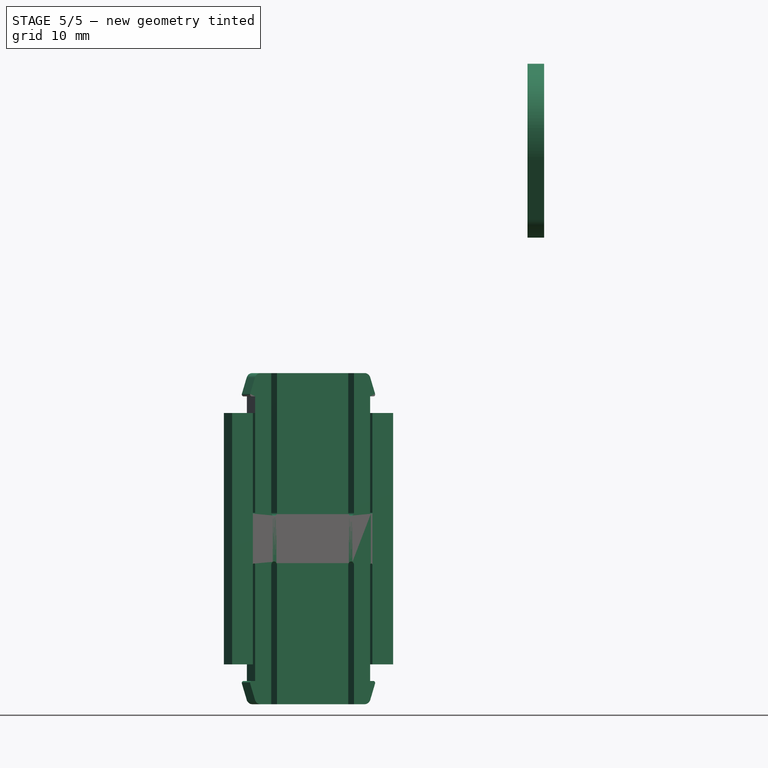
[diagram: stage 5 of 5 — front view after this stage's code; geometry added in this stage tinted green]
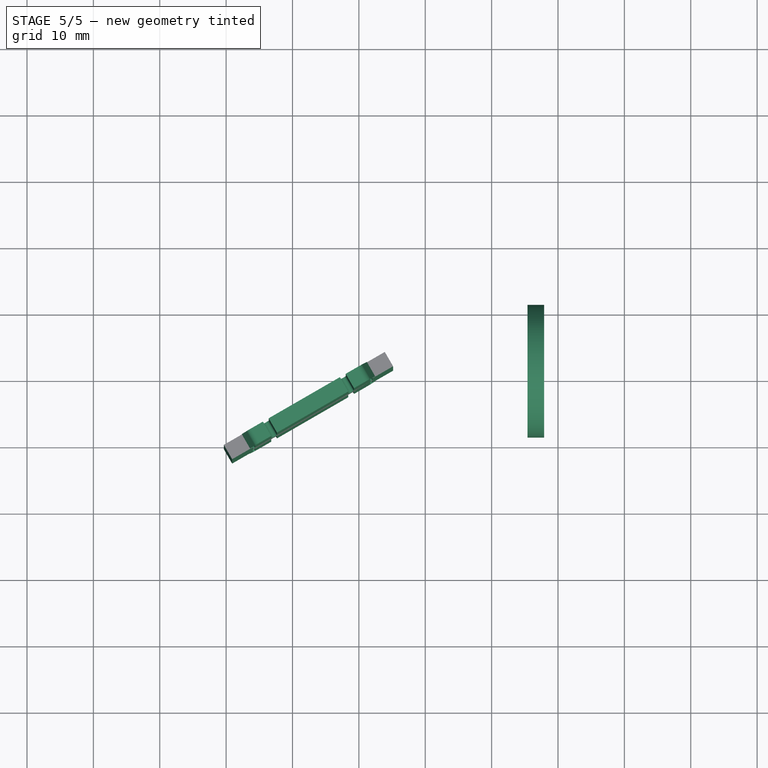
[diagram: stage 5 of 5 — top view after this stage's code; geometry added in this stage tinted green]
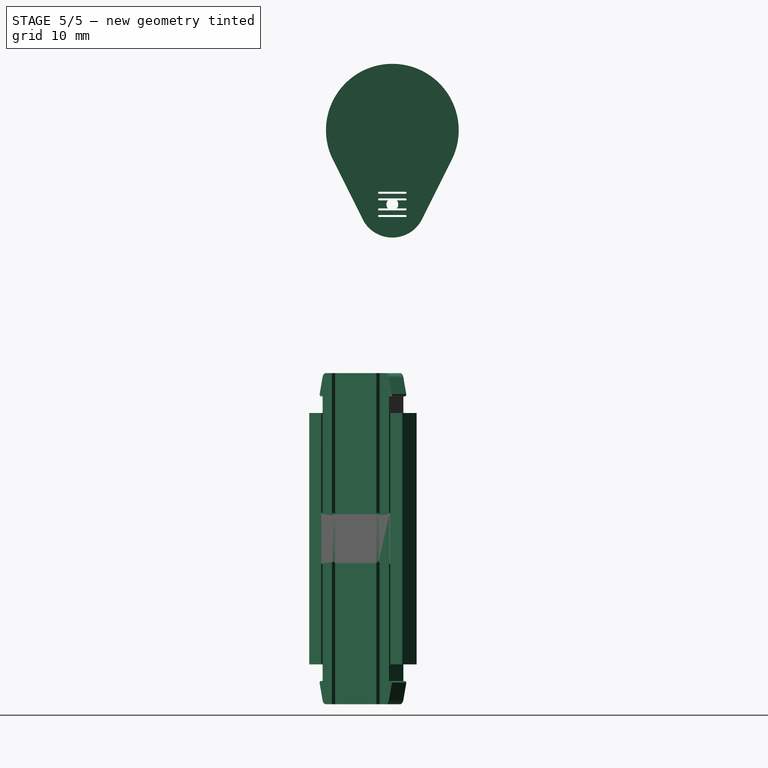
[diagram: stage 5 of 5 — right view after this stage's code; geometry added in this stage tinted green]
FEATURE [Part::Feature] Part__Feature  label="Housing"
  Placement = pos=(-7.38835,7.3,15.85) rot=(0.707107,0.707107,0;3.14159rad)
  shape: bbox 1.7 x 5.6 x 5.6 mm, 4 faces (baked)
FEATURE [Part::Feature] Part__Feature001  label="Housing001"
  Placement = pos=(-7.38835,7.3,15.85) rot=(0.707107,0.707107,0;3.14159rad)
  shape: bbox 37.6 x 2.165 x 2.165 mm, 5 faces (baked)
FEATURE [Part::Feature] Part__Feature002  label="Housing002"
  Placement = pos=(-7.38835,7.3,15.85) rot=(0.707107,0.707107,0;3.14159rad)
  shape: bbox 21.71 x 18.95 x 21.65 mm, 91 faces (baked)
FEATURE [App::Part] Housing  label="Housing003"
  Group = -> [Part__Feature,Part__Feature001,Part__Feature002]
  Origin = -> Origin005
FEATURE [Part::Feature] Part__Feature003  label="End Cap"
  Placement = pos=(-6.27451,5.91929,15.5831) rot=(0.707107,0.707107,0;3.14159rad)
  shape: bbox 12.3 x 19.55 x 21.27 mm, 117 faces (baked)
FEATURE [Part::Feature] Part__Feature004  label="End Cap001"
  Placement = pos=(-6.27451,5.91929,15.5831) rot=(0.707107,0.707107,0;3.14159rad)
  shape: bbox 2 x 0.2 x 14 mm, 14 faces (baked)
FEATURE [App::Part] End_Cap  label="End Cap002"
  Group = -> [Part__Feature003,Part__Feature004]
  Origin = -> Origin006
FEATURE [App::Part] SunFounder_3_6V_DC_Motor_v2  label="DC_Motor"
  Group = -> [Housing,End_Cap]
  Origin = -> Origin007
  Placement = pos=(35,15.85,83) rot=(1,0,0;1.5708rad)
FEATURE [PartDesign::SubShapeBinder] Binder001
  BindCopyOnChange = 0
  BindMode = 0
  ClaimChildren = false
  Context = -> Body005 [Binder001.]
  Fuse = false
  MakeFace = true
  OffsetFill = false
  OffsetIntersection = false
  OffsetJoinType = 0
  OffsetOpenResult = false
  PartialLoad = false
  Relative = true
  Support = -> [Body]
  _Version = 2
FEATURE [PartDesign::SubShapeBinder] Binder002
  BindCopyOnChange = 0
  BindMode = 0
  ClaimChildren = false
  Context = -> Body010 [Binder002.]
  Fuse = false
  MakeFace = true
  OffsetFill = false
  OffsetIntersection = false
  OffsetJoinType = 0
  OffsetOpenResult = false
  PartialLoad = false
  Relative = true
  Support = -> [SunFounder_3_6V_DC_Motor_v2]
  _Version = 2
FEATURE [Sketcher::SketchObject] Sketch020
  ExternalGeometry = -> [Binder002]
  FullyConstrained = true
  MapMode = 5
  Placement = pos=(37.9117,-1.896e-13,-1.137e-13) rot=(0.57735,0.57735,0.57735;2.0944rad)
  Support = -> [Binder002]
  sketch-geometry (34):
    g0: ArcOfCircle CenterX=-2 CenterY=89.55 CenterZ=0 NormalX=0 NormalY=0 NormalZ=1 AngleXU=0 Radius=0.15 StartAngle=1.5708 EndAngle=4.71239
    g1: ArcOfCircle CenterX=2 CenterY=89.55 CenterZ=0 NormalX=0 NormalY=0 NormalZ=1 AngleXU=0 Radius=0.15 StartAngle=4.71239 EndAngle=7.85398
    g2: LineSegment StartX=-2 StartY=89.4 StartZ=0 EndX=2 EndY=89.4 EndZ=0
    g3: LineSegment StartX=2 StartY=89.7 StartZ=0 EndX=0.67082 EndY=89.7 EndZ=0
    g4: LineSegment StartX=-2 StartY=89.55 StartZ=0 EndX=2 EndY=89.55 EndZ=0
    g5: LineSegment StartX=2.573e-13 StartY=90.3 StartZ=0 EndX=2.573e-13 EndY=89.55 EndZ=0
    g6: ArcOfCircle CenterX=-2 CenterY=91.05 CenterZ=0 NormalX=0 NormalY=0 NormalZ=1 AngleXU=0 Radius=0.15 StartAngle=1.5708 EndAngle=4.71239
    g7: ArcOfCircle CenterX=2 CenterY=91.05 CenterZ=0 NormalX=0 NormalY=0 NormalZ=1 AngleXU=0 Radius=0.15 StartAngle=4.71239 EndAngle=7.85398
    g8: LineSegment StartX=-2 StartY=90.9 StartZ=0 EndX=-0.67082 EndY=90.9 EndZ=0
    g9: LineSegment StartX=2 StartY=91.2 StartZ=0 EndX=-2 EndY=91.2 EndZ=0
    g10: LineSegment StartX=-2 StartY=91.05 StartZ=0 EndX=2 EndY=91.05 EndZ=0
    g11: LineSegment StartX=2.573e-13 StartY=91.05 StartZ=0 EndX=2.573e-13 EndY=90.3 EndZ=0
    g12: ArcOfCircle CenterX=2.573e-13 CenterY=90.3 CenterZ=0 NormalX=0 NormalY=0 NormalZ=1 AngleXU=0 Radius=0.9 StartAngle=2.41186 EndAngle=3.87132
    g13: ArcOfCircle CenterX=2.573e-13 CenterY=90.3 CenterZ=0 NormalX=0 NormalY=0 NormalZ=1 AngleXU=0 Radius=0.9 StartAngle=5.55346 EndAngle=7.01291
    g14: LineSegment StartX=2 StartY=90.9 StartZ=0 EndX=0.67082 EndY=90.9 EndZ=0
    g15: LineSegment StartX=2.577e-13 StartY=89.3 StartZ=0 EndX=2.577e-13 EndY=89.4 EndZ=0
    g16: ArcOfCircle CenterX=-2 CenterY=88.55 CenterZ=0 NormalX=0 NormalY=0 NormalZ=1 AngleXU=0 Radius=0.15 StartAngle=1.5708 EndAngle=4.71239
    g17: ArcOfCircle CenterX=2 CenterY=88.55 CenterZ=0 NormalX=0 NormalY=0 NormalZ=1 AngleXU=0 Radius=0.15 StartAngle=4.71239 EndAngle=7.85398
    g18: LineSegment StartX=-2 StartY=88.4 StartZ=0 EndX=2 EndY=88.4 EndZ=0
    g19: LineSegment StartX=2 StartY=88.7 StartZ=0 EndX=-2 EndY=88.7 EndZ=0
    g20: ArcOfCircle CenterX=-2 CenterY=92.05 CenterZ=0 NormalX=0 NormalY=0 NormalZ=1 AngleXU=0 Radius=0.15 StartAngle=1.5708 EndAngle=4.71239
    g21: ArcOfCircle CenterX=2 CenterY=92.05 CenterZ=0 NormalX=0 NormalY=0 NormalZ=1 AngleXU=0 Radius=0.15 StartAngle=4.71239 EndAngle=7.85398
    g22: LineSegment StartX=-2 StartY=91.9 StartZ=0 EndX=2 EndY=91.9 EndZ=0
    g23: LineSegment StartX=2 StartY=92.2 StartZ=0 EndX=-2 EndY=92.2 EndZ=0
    g24: LineSegment StartX=-2 StartY=92.05 StartZ=0 EndX=2 EndY=92.05 EndZ=0
    g25: LineSegment StartX=-2 StartY=88.55 StartZ=0 EndX=2 EndY=88.55 EndZ=0
    g26: LineSegment StartX=2.573e-13 StartY=88.55 StartZ=0 EndX=2.573e-13 EndY=89.55 EndZ=0
    g27: LineSegment StartX=2.573e-13 StartY=92.05 StartZ=0 EndX=2.573e-13 EndY=91.05 EndZ=0
    g28: ArcOfCircle CenterX=2.573e-13 CenterY=101.48 CenterZ=0 NormalX=0 NormalY=0 NormalZ=1 AngleXU=0 Radius=10 StartAngle=5.81954 EndAngle=9.88843
    g29: ArcOfCircle CenterX=2.573e-13 CenterY=90.3 CenterZ=0 NormalX=0 NormalY=0 NormalZ=1 AngleXU=0 Radius=5 StartAngle=3.60524 EndAngle=5.81954
    g30: LineSegment StartX=-8.94427 StartY=97.0082 StartZ=0 EndX=-4.47214 EndY=88.0639 EndZ=0
    g31: LineSegment StartX=4.47214 StartY=88.0639 StartZ=0 EndX=8.94427 EndY=97.0082 EndZ=0
    g32: LineSegment StartX=-0.67082 StartY=89.7 StartZ=0 EndX=-2 EndY=89.7 EndZ=0
    g33: LineSegment StartX=-1 StartY=90.3 StartZ=0 EndX=-0.9 EndY=90.3 EndZ=0
  constraints (84):
    c: Tangent(g0,g2) = -1.5708
    c: Tangent(g2,g1) = -1.5708
    c: Tangent(g1,g3) = -1.5708
    c: Equal(g0,g1)
    c: Horizontal(g2)
    c: Coincident(g4,g1)
    c: Vertical(g5)
    c: Symmetric(g0,g1,g5)
    c: Radius(g0) = 0.15
    c: DistanceX(g4,g4) = 4
    c: Coincident(g5,g-3)
    c: Tangent(g6,g8) = -1.5708
    c: Tangent(g7,g9) = -1.5708
    c: Tangent(g9,g6) = -1.5708
    c: Equal(g6,g7)
    c: Horizontal(g8)
    c: Coincident(g10,g6)
    c: Coincident(g10,g7)
    c: Vertical(g11)
    c: Symmetric(g6,g7,g11)
    c: Equal(g5,g11)
    c: Equal(g10,g4)
    c: Equal(g0,g6)
    c: Coincident(g11,g5)
    c: Coincident(g12,g5)
    c: Coincident(g13,g12)
    c: Equal(g13,g12)
    c: PointOnObject(g12,g3)
    c: Coincident(g8,g12)
    c: Coincident(g14,g13)
    c: Horizontal(g14)
    c: Tangent(g14,g7) = 1.5708
    c: Horizontal(g3)
    c: Coincident(g0,g4)
    c: Coincident(g15,g-3)
    c: PointOnObject(g15,g2)
    c: Vertical(g15)
    c: DistanceY(g15,g15) = 0.1
    c: Tangent(g16,g18) = -1.5708
    c: Tangent(g18,g17) = -1.5708
    c: Tangent(g17,g19) = -1.5708
    c: Tangent(g19,g16) = -1.5708
    c: Equal(g16,g17)
    c: Horizontal(g18)
    c: Equal(g16,g0)
    c: Tangent(g20,g22) = -1.5708
    c: Tangent(g22,g21) = -1.5708
    c: Tangent(g21,g23) = -1.5708
    c: Tangent(g23,g20) = -1.5708
    c: Equal(g20,g21)
    c: Horizontal(g22)
    c: Equal(g20,g0)
    c: Coincident(g24,g20)
    c: Coincident(g24,g21)
    c: Coincident(g25,g16)
    c: Coincident(g25,g17)
    c: Vertical(g27)
    c: Vertical(g26)
    c: Equal(g4,g25)
    c: Symmetric(g16,g17,g26)
    c: Coincident(g26,g5)
    c: Equal(g24,g10)
    c: Symmetric(g20,g21,g27)
    c: Coincident(g27,g11)
    c: Equal(g27,g26)
    c: DistanceY(g27,g27) = 1
    c: Tangent(g28,g30) = -1.5708
    c: Tangent(g30,g29) = -1.5708
    c: Tangent(g29,g31) = -1.5708
    c: Tangent(g31,g28) = -1.5708
    c: Coincident(g29,g12)
    c: Radius(g29) = 5
    c: PointOnObject(g32,g12)
    c: Horizontal(g32)
    c: Tangent(g32,g0) = -1.5708
    c: Radius(g28) = 10
    c: Distance(g30) = 10
    c: Vertical(g12,g28)
    c: Coincident(g3,g13)
    c: Horizontal(g9)
    c: Coincident(g33,g-3)
    c: PointOnObject(g33,g12)
    c: Horizontal(g33)
    c: DistanceX(g33,g33) = 0.1
FEATURE [PartDesign::Pad] Pad002
  Direction = (1,-4.9e-15,-3.2e-15)
  Length = 2.5
  Length2 = 10
  Profile = -> Sketch020
  ReferenceAxis = -> Sketch020 [N_Axis]
  Reversed = true
  Type = 0
  expr: Length = Spreadsheet.ply_thickness
FEATURE [Part::Part2DObjectPython] Clone2D  label="Sketch028 (2D)"  # Draft 2D object (typed FeaturePython)
  AttachmentOffset = pos=(1,-22,0) rot=(0,0,1;2.61799rad)
  Fuse = false
  MapMode = 5
  Objects = -> [Sketch028]
  Placement = pos=(1,22,38.5) rot=(0.258819,-0.965926,0;3.14159rad)
  Scale = (0.35,0.35,0.35)
  Support = -> [PolarPattern002]
FEATURE [PartDesign::Pocket] Pocket011
  BaseFeature = -> PolarPattern002
  Direction = (0,-2e-16,1)
  Length = 0.2
  Length2 = 5
  Midplane = true
  Placement = pos=(0,0,0) rot=(1,0,0;1.5708rad)
  Profile = -> Clone2D
  ReferenceAxis = -> Clone2D [N_Axis]
  Type = 0
FEATURE [Sketcher::SketchObject] Sketch031
  ExternalGeometry = -> [Binder007]
  FullyConstrained = true
  MapMode = 5
  Placement = pos=(0,0,41) rot=(0,0,1;3.14159rad)
  Support = -> [Pocket011]
  expr: Constraints[9] = Spreadsheet.ply_thickness
  sketch-geometry (5):
    g0: LineSegment StartX=-10.4413 StartY=-1.65506 StartZ=0 EndX=6.87917 EndY=8.34494 EndZ=0
    g1: LineSegment StartX=6.87917 StartY=8.34494 StartZ=0 EndX=5.62917 EndY=10.51 EndZ=0
    g2: LineSegment StartX=5.62917 StartY=10.51 StartZ=0 EndX=-11.6913 EndY=0.51 EndZ=0
    g3: LineSegment StartX=-11.6913 StartY=0.51 StartZ=0 EndX=-10.4413 EndY=-1.65506 EndZ=0
    g4: LineSegment StartX=-3.03109 StartY=5.51 StartZ=0 EndX=-1.78109 EndY=3.34494 EndZ=0
  constraints (14):
    c: Coincident(g0,g1)
    c: Coincident(g1,g2)
    c: Coincident(g2,g3)
    c: Coincident(g3,g0)
    c: Parallel(g0,g-3)
    c: Perpendicular(g0,g1)
    c: Perpendicular(g0,g3)
    c: Perpendicular(g2,g3)
    c: Distance(g0) = 20
    c: Distance(g3) = 2.5
    c: PointOnObject(g4,g2)
    c: Perpendicular(g0,g4)
    c: Symmetric(g0,g0,g4)
    c: Symmetric(g-3,g-3,g4)
FEATURE [Spreadsheet::Sheet] Spreadsheet
  cells = A2='ply_thickness; B2(ply_thickness)=2.5
FEATURE [PartDesign::Pocket] Pocket012
  BaseFeature = -> Pocket011
  Direction = (0,2e-16,-1)
  Length = 5
  Length2 = 5
  Placement = pos=(0,0,0) rot=(1,0,0;1.5708rad)
  Profile = -> Sketch031
  ReferenceAxis = -> Sketch031 [N_Axis]
  Type = 1
FEATURE [PartDesign::Body] Body011  label="small_disk"
  Group = -> [Binder003,Binder004,Sketch021,Revolution008,Sketch022,Pocket,Sketch023,Pocket001,Binder008,Sketch029,Pocket008,Fillet001,PolarPattern003,Sketch032,Pocket013]
  Origin = -> Origin015
  Tip = -> Pocket013
FEATURE [Part::Part2DObjectPython] Shape2DView002  label="small_disk_DXF"  # Draft 2D object (typed FeaturePython)
  AutoUpdate = true
  Base = -> Body011
  Clip = false
  FuseArch = false
  HiddenLines = false
  InPlace = true
  OnlySolids = false
  Projection = (0,0,1)
  ProjectionMode = 0
  SegmentLength = 0.05
  Tessellation = false
  VisibleOnly = false
FEATURE [TechDraw::DrawProjGroupItem] ProjItem  label="Front"
  CoarseView = false
  Direction = (0,1,0)
  Focus = 100
  HardHidden = true
  IsoCount = 0
  IsoHidden = false
  IsoVisible = false
  LockPosition = true
  Perspective = false
  Rotation = 0
  RotationVector = (-1,0,0)
  ScaleType = 2
  ScrubCount = 0
  SeamHidden = false
  SeamVisible = false
  SmoothHidden = false
  SmoothVisible = true
  Source = -> [Body,Array,SunFounder_3_6V_DC_Motor_v2,Body005,Body010,Body011,Part__Feature014]
  Type = 0
  X = 0
  XDirection = (-1,0,0)
  Y = 0
FEATURE [TechDraw::DrawProjGroupItem] ProjItem001  label="Top"
  CoarseView = false
  Direction = (0,0,1)
  Focus = 100
  HardHidden = false
  IsoCount = 0
  IsoHidden = false
  IsoVisible = false
  LockPosition = false
  Perspective = false
  Rotation = 0
  RotationVector = (1,0,0)
  ScaleType = 2
  ScrubCount = 0
  SeamHidden = false
  SeamVisible = false
  SmoothHidden = false
  SmoothVisible = true
  Source = -> [Body,Array,SunFounder_3_6V_DC_Motor_v2,Body005,Body010,Body011,Part__Feature014]
  Type = 4
  X = 0
  XDirection = (-1,0,0)
  Y = 126.188
FEATURE [TechDraw::DrawProjGroupItem] ProjItem002  label="FrontTopRight"
  CoarseView = false
  Direction = (-0.57735,0.57735,0.57735)
  Focus = 100
  HardHidden = false
  IsoCount = 0
  IsoHidden = false
  IsoVisible = false
  LockPosition = false
  Perspective = false
  Rotation = 0
  RotationVector = (1,0,0)
  ScaleType = 2
  ScrubCount = 0
  SeamHidden = false
  SeamVisible = false
  SmoothHidden = false
  SmoothVisible = true
  Source = -> [Body,Array,SunFounder_3_6V_DC_Motor_v2,Body005,Body010,Body011,Part__Feature014]
  Type = 7
  X = 109.482
  XDirection = (-0.707107,-0.707107,0)
  Y = 145.976
FEATURE [TechDraw::DrawProjGroupItem] ProjItem003  label="Right"
  CoarseView = false
  Direction = (-1,1e-16,0)
  Focus = 100
  HardHidden = true
  IsoCount = 0
  IsoHidden = false
  IsoVisible = false
  LockPosition = false
  Perspective = false
  Rotation = 0
  RotationVector = (1,0,0)
  ScaleType = 2
  ScrubCount = 0
  SeamHidden = false
  SeamVisible = false
  SmoothHidden = false
  SmoothVisible = true
  Source = -> [Body,Array,SunFounder_3_6V_DC_Motor_v2,Body005,Body010,Body011,Part__Feature014]
  Type = 2
  X = 91.649
  XDirection = (-1e-16,-1,0)
  Y = 0
FEATURE [TechDraw::DrawProjGroup] ProjGroup
  Anchor = -> ProjItem
  AutoDistribute = false
  LockPosition = false
  ProjectionType = 1
  Rotation = 0
  ScaleType = 0
  Source = -> [Body,Array,SunFounder_3_6V_DC_Motor_v2,Body005,Body010,Body011,Part__Feature014]
  Views = -> [ProjItem,ProjItem001,ProjItem002,ProjItem003]
  X = 52.3298
  Y = 78.2507
  spacingX = 15
  spacingY = 15
FEATURE [TechDraw::DrawPage] Page
  KeepUpdated = true
  NextBalloonIndex = 1
  ProjectionType = 1
  Template = -> Template
  Views = -> [ProjGroup]
FEATURE [PartDesign::SubShapeBinder] Binder
  BindCopyOnChange = 0
  BindMode = 0
  ClaimChildren = false
  Context = -> Body012 [Binder.]
  Fuse = false
  MakeFace = true
  OffsetFill = false
  OffsetIntersection = false
  OffsetJoinType = 0
  OffsetOpenResult = false
  PartialLoad = false
  Relative = true
  Support = -> [Body005[Pocket012.]]
  _Version = 2
FEATURE [PartDesign::SubShapeBinder] Binder010
  BindCopyOnChange = 0
  BindMode = 0
  ClaimChildren = false
  Context = -> Body012 [Binder010.]
  Fuse = false
  MakeFace = true
  OffsetFill = false
  OffsetIntersection = false
  OffsetJoinType = 0
  OffsetOpenResult = false
  PartialLoad = false
  Relative = true
  Support = -> [Body011[Pocket013.]]
  _Version = 2
FEATURE [PartDesign::SubShapeBinder] Binder011
  BindCopyOnChange = 0
  BindMode = 0
  ClaimChildren = false
  Context = -> Body012 [Binder011.]
  Fuse = false
  MakeFace = true
  OffsetFill = false
  OffsetIntersection = false
  OffsetJoinType = 0
  OffsetOpenResult = false
  PartialLoad = false
  Relative = true
  Support = -> [Part__Feature014]
  _Version = 2
FEATURE [Sketcher::SketchObject] Sketch033
  ExternalGeometry = -> [Binder,Binder010]
  FullyConstrained = true
  MapMode = 5
  Placement = pos=(1.89367,-3.27994,0) rot=(0.935113,0.250563,0.250563;1.63783rad)
  Support = -> [Binder]
  expr: Constraints[19] = Spreadsheet.ply_thickness
  sketch-geometry (48):
    g0: LineSegment StartX=-10.53 StartY=58.8773 StartZ=0 EndX=-14.13 EndY=58.8773 EndZ=0
    g1: LineSegment StartX=-14.13 StartY=58.8773 StartZ=0 EndX=-14.13 EndY=21 EndZ=0
    g2: LineSegment StartX=-14.13 StartY=21 StartZ=0 EndX=-10.53 EndY=21 EndZ=0
    g3: LineSegment StartX=-10.13 StartY=21 StartZ=0 EndX=-10.13 EndY=18.5 EndZ=0
    g4: LineSegment StartX=-10.13 StartY=58.8773 StartZ=0 EndX=-10.13 EndY=61.3773 EndZ=0
    g5: LineSegment StartX=9.87 StartY=61.3773 StartZ=0 EndX=9.87 EndY=58.8773 EndZ=0
    g6: LineSegment StartX=10.27 StartY=58.8773 StartZ=0 EndX=13.87 EndY=58.8773 EndZ=0
    g7: LineSegment StartX=13.87 StartY=58.8773 StartZ=0 EndX=13.87 EndY=21 EndZ=0
    g8: LineSegment StartX=13.87 StartY=21 StartZ=0 EndX=10.27 EndY=21 EndZ=0
    g9: LineSegment StartX=9.87 StartY=21 StartZ=0 EndX=9.87 EndY=18.5 EndZ=0
    g10: LineSegment StartX=-10.13 StartY=18.5 StartZ=0 EndX=-11.13 EndY=18.5 EndZ=0
    g11: LineSegment StartX=-11.13 StartY=18.5 StartZ=0 EndX=-9.93 EndY=15 EndZ=0
    g12: LineSegment StartX=-9.93 StartY=15 StartZ=0 EndX=-7.33 EndY=15 EndZ=0
    g13: LineSegment StartX=-7.33 StartY=15 StartZ=0 EndX=-7.33 EndY=36 EndZ=0
    g14: ArcOfCircle CenterX=-6.83 CenterY=36 CenterZ=0 NormalX=0 NormalY=0 NormalZ=1 AngleXU=0 Radius=0.5 StartAngle=-3.6e-15 EndAngle=3.14159
    g15: LineSegment StartX=-6.33 StartY=36 StartZ=0 EndX=-6.33 EndY=15 EndZ=0
    g16: LineSegment StartX=-6.33 StartY=15 StartZ=0 EndX=6.07 EndY=15 EndZ=0
    g17: LineSegment StartX=6.07 StartY=15 StartZ=0 EndX=6.07 EndY=36 EndZ=0
    g18: ArcOfCircle CenterX=6.57 CenterY=36 CenterZ=0 NormalX=0 NormalY=0 NormalZ=1 AngleXU=0 Radius=0.5 StartAngle=8e-16 EndAngle=3.14159
    g19: LineSegment StartX=7.07 StartY=36 StartZ=0 EndX=7.07 EndY=15 EndZ=0
    g20: LineSegment StartX=7.07 StartY=15 StartZ=0 EndX=9.67 EndY=15 EndZ=0
    g21: LineSegment StartX=9.67 StartY=15 StartZ=0 EndX=10.87 EndY=18.5 EndZ=0
    g22: LineSegment StartX=10.87 StartY=18.5 StartZ=0 EndX=9.87 EndY=18.5 EndZ=0
    g23: LineSegment StartX=-10.13 StartY=21 StartZ=0 EndX=-10.13 EndY=36 EndZ=0
    g24: ArcOfCircle CenterX=-10.33 CenterY=36 CenterZ=0 NormalX=0 NormalY=0 NormalZ=1 AngleXU=0 Radius=0.2 StartAngle=9.4e-15 EndAngle=3.14159
    g25: LineSegment StartX=-10.53 StartY=36 StartZ=0 EndX=-10.53 EndY=21 EndZ=0
    g26: LineSegment StartX=9.87 StartY=21 StartZ=0 EndX=9.87 EndY=36 EndZ=0
    g27: ArcOfCircle CenterX=10.07 CenterY=36 CenterZ=0 NormalX=0 NormalY=0 NormalZ=1 AngleXU=0 Radius=0.2 StartAngle=3.027e-13 EndAngle=3.14159
    g28: LineSegment StartX=10.27 StartY=36 StartZ=0 EndX=10.27 EndY=21 EndZ=0
    g29: LineSegment StartX=-10.13 StartY=58.8773 StartZ=0 EndX=-10.13 EndY=43.8773 EndZ=0
    g30: ArcOfCircle CenterX=-10.33 CenterY=43.8773 CenterZ=0 NormalX=0 NormalY=0 NormalZ=1 AngleXU=0 Radius=0.2 StartAngle=3.14159 EndAngle=6.28319
    g31: LineSegment StartX=-10.53 StartY=43.8773 StartZ=0 EndX=-10.53 EndY=58.8773 EndZ=0
    g32: LineSegment StartX=9.87 StartY=58.8773 StartZ=0 EndX=9.87 EndY=43.8773 EndZ=0
    g33: ArcOfCircle CenterX=10.07 CenterY=43.8773 CenterZ=0 NormalX=0 NormalY=0 NormalZ=1 AngleXU=0 Radius=0.2 StartAngle=3.14159 EndAngle=6.28319
    g34: LineSegment StartX=10.27 StartY=43.8773 StartZ=0 EndX=10.27 EndY=58.8773 EndZ=0
    g35: LineSegment StartX=-10.13 StartY=61.3773 StartZ=0 EndX=-11.13 EndY=61.3773 EndZ=0
    g36: LineSegment StartX=-11.13 StartY=61.3773 StartZ=0 EndX=-9.93 EndY=64.8773 EndZ=0
    g37: LineSegment StartX=-9.93 StartY=64.8773 StartZ=0 EndX=-7.33 EndY=64.8773 EndZ=0
    g38: LineSegment StartX=-7.33 StartY=64.8773 StartZ=0 EndX=-7.33 EndY=43.8773 EndZ=0
    g39: ArcOfCircle CenterX=-6.83 CenterY=43.8773 CenterZ=0 NormalX=0 NormalY=0 NormalZ=1 AngleXU=0 Radius=0.5 StartAngle=3.14159 EndAngle=6.28319
    g40: LineSegment StartX=-6.33 StartY=43.8773 StartZ=0 EndX=-6.33 EndY=64.8773 EndZ=0
    g41: LineSegment StartX=-6.33 StartY=64.8773 StartZ=0 EndX=6.07 EndY=64.8773 EndZ=0
    g42: LineSegment StartX=6.07 StartY=64.8773 StartZ=0 EndX=6.07 EndY=43.8773 EndZ=0
    g43: ArcOfCircle CenterX=6.57 CenterY=43.8773 CenterZ=0 NormalX=0 NormalY=0 NormalZ=1 AngleXU=0 Radius=0.5 StartAngle=3.14159 EndAngle=6.28319
    g44: LineSegment StartX=7.07 StartY=43.8773 StartZ=0 EndX=7.07 EndY=64.8773 EndZ=0
    g45: LineSegment StartX=7.07 StartY=64.8773 StartZ=0 EndX=9.67 EndY=64.8773 EndZ=0
    g46: LineSegment StartX=9.67 StartY=64.8773 StartZ=0 EndX=10.87 EndY=61.3773 EndZ=0
    g47: LineSegment StartX=10.87 StartY=61.3773 StartZ=0 EndX=9.87 EndY=61.3773 EndZ=0
  constraints (132):
    c: Horizontal(g0)
    c: Coincident(g0,g1)
    c: Vertical(g1)
    c: Coincident(g1,g2)
    c: Horizontal(g2)
    c: Coincident(g-3,g3)
    c: Coincident(g-4,g4)
    c: Vertical(g4)
    c: Coincident(g5,g-4)
    c: Vertical(g5)
    c: Horizontal(g6)
    c: Coincident(g6,g7)
    c: Vertical(g7)
    c: Coincident(g7,g8)
    c: Coincident(g-3,g9)
    c: Vertical(g9)
    c: Equal(g9,g3)
    c: Equal(g3,g4)
    c: Equal(g4,g5)
    c: Distance(g4) = 2.5
    c: Vertical(g3)
    c: Coincident(g3,g10)
    c: Horizontal(g10)
    c: Coincident(g10,g11)
    c: Coincident(g11,g12)
    c: Horizontal(g12)
    c: Coincident(g12,g13)
    c: Vertical(g13)
    c: Tangent(g13,g14) = 1.5708
    c: Vertical(g15)
    c: Coincident(g15,g16)
    c: Horizontal(g16)
    c: Coincident(g16,g17)
    c: Vertical(g17)
    c: Tangent(g17,g18) = 1.5708
    c: Vertical(g19)
    c: Coincident(g19,g20)
    c: Horizontal(g20)
    c: Coincident(g20,g21)
    c: Coincident(g21,g22)
    c: Coincident(g22,g9)
    c: Horizontal(g22)
    c: Coincident(g-3,g23)
    c: Vertical(g23)
    c: Tangent(g23,g24) = -1.5708
    c: Vertical(g25)
    c: Coincident(g-3,g26)
    c: Vertical(g26)
    c: Vertical(g28)
    c: Horizontal(g27,g24)
    c: Tangent(g24,g25) = -1.5708
    c: Tangent(g14,g15) = 1.5708
    c: Tangent(g18,g19) = 1.5708
    c: Tangent(g27,g26) = 1.5708
    c: Tangent(g27,g28) = 1.5708
    c: Distance(g25) = 15
    c: Equal(g24,g27)
    c: Diameter(g24) = 0.4
    c: Coincident(g2,g25)
    c: Coincident(g8,g28)
    c: Equal(g2,g8)
    c: Equal(g25,g23)
    c: Equal(g28,g26)
    c: Horizontal(g8)
    c: Coincident(g-4,g29)
    c: Vertical(g29)
    c: Tangent(g29,g30) = 1.5708
    c: Angle(g30) = 3.14159
    c: Tangent(g30,g31) = 1.5708
    c: Equal(g30,g24)
    c: Equal(g25,g31)
    c: Coincident(g0,g31)
    c: Equal(g31,g29)
    c: Distance(g4,g0) = 4
    c: Coincident(g5,g32)
    c: Vertical(g32)
    c: Tangent(g32,g33) = -1.5708
    c: Angle(g33) = 3.14159
    c: Tangent(g33,g34) = -1.5708
    c: Equal(g33,g27)
    c: Equal(g28,g34)
    c: Horizontal(g14,g24)
    c: Horizontal(g18,g27)
    c: Equal(g18,g14)
    c: Diameter(g18) = 1
    c: Distance(g24,g14) = 3.5
    c: Distance(g18,g27) = 3.5
    c: Equal(g13,g15)
    c: Equal(g15,g19)
    c: Equal(g10,g22)
    c: Equal(g12,g20)
    c: Distance(g3,g12) = 3.5
    c: DistanceX(g3,g11) = 0.2
    c: Distance(g10) = 1
    c: Coincident(g4,g35)
    c: Horizontal(g35)
    c: Coincident(g35,g36)
    c: Coincident(g36,g37)
    c: Horizontal(g37)
    c: Coincident(g37,g38)
    c: Vertical(g38)
    c: Tangent(g38,g39) = -1.5708
    c: Angle(g39) = 3.14159
    c: Tangent(g39,g40) = -1.5708
    c: Coincident(g40,g41)
    c: Horizontal(g41)
    c: Coincident(g41,g42)
    c: Vertical(g42)
    c: Tangent(g42,g43) = -1.5708
    c: Angle(g43) = 3.14159
    c: Tangent(g43,g44) = -1.5708
    c: Coincident(g44,g45)
    c: Horizontal(g45)
    c: Coincident(g45,g46)
    c: Coincident(g46,g47)
    c: Coincident(g47,g5)
    c: Horizontal(g47)
    c: Equal(g35,g10)
    c: Equal(g22,g47)
    c: Equal(g37,g12)
    c: Equal(g20,g45)
    c: Horizontal(g39,g30)
    c: Horizontal(g43,g33)
    c: Vertical(g39,g14)
    c: Vertical(g43,g18)
    c: Equal(g39,g14)
    c: Equal(g43,g18)
    c: Equal(g38,g40)
    c: Equal(g40,g44)
    c: Equal(g38,g13)
    c: Coincident(g6,g34)
    c: Equal(g34,g32)
FEATURE [PartDesign::Pad] Pad003
  Direction = (0.5,-0.866025,-1e-16)
  Length = 2.5
  Length2 = 10
  Profile = -> Sketch033
  ReferenceAxis = -> Sketch033 [N_Axis]
  Type = 0
  expr: Length = Spreadsheet.ply_thickness
FEATURE [PartDesign::Fillet] Fillet002
  Base = -> Pad003 [Edge56,Edge29,Edge128,Edge101]
  BaseFeature = -> Pad003
  Radius = 1
  SupportTransform = false
  UseAllEdges = false
FEATURE [PartDesign::Fillet] Fillet003
  Base = -> Fillet002 [Edge129,Edge3,Edge132,Edge155]
  BaseFeature = -> Fillet002
  Radius = 0.3
  SupportTransform = false
  UseAllEdges = false
FEATURE [PartDesign::Body] Body012  label="support_vertical"
  Group = -> [Binder,Binder010,Binder011,Sketch033,Pad003,Fillet002,Fillet003]
  Origin = -> Origin016
  Tip = -> Fillet003
FEATURE [Part::Part2DObjectPython] Shape2DView006  label="vertical_support_DXF"  # Draft 2D object (typed FeaturePython)
  AutoUpdate = true
  Base = -> Fillet003
  Clip = false
  FaceNumbers = [4]
  FuseArch = false
  HiddenLines = false
  InPlace = true
  OnlySolids = false
  Projection = (0.5,-0.866025,0)
  ProjectionMode = 0
  SegmentLength = 0.05
  Tessellation = false
  VisibleOnly = false
FEATURE [App::DocumentObjectGroup] Group  label="DXF"
  Group = -> [Shape2DView,Shape2DView003,Shape2DView002,Shape2DView005,Shape2DView006]
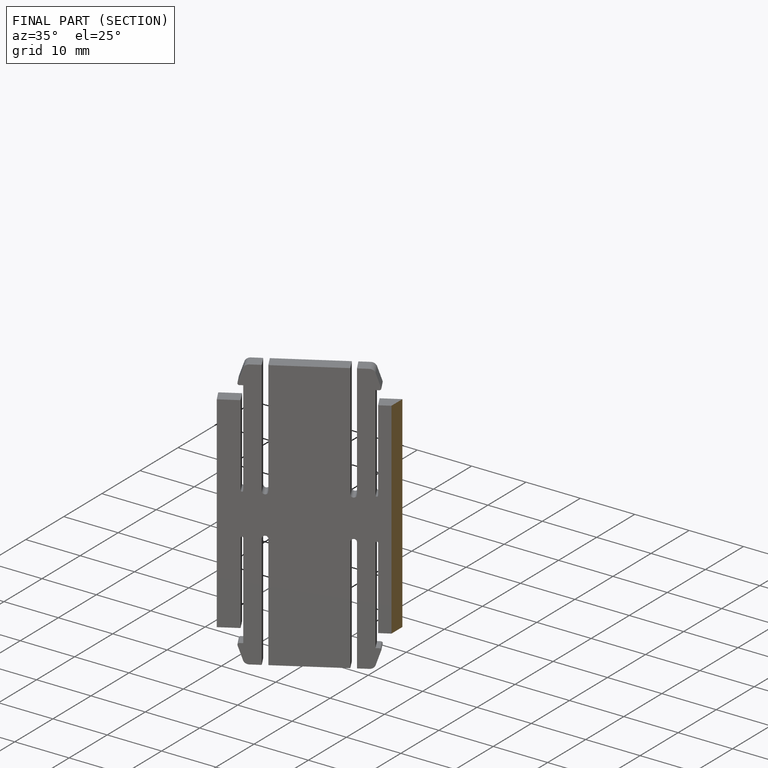
[diagram: finished part — half-section view (interior)]
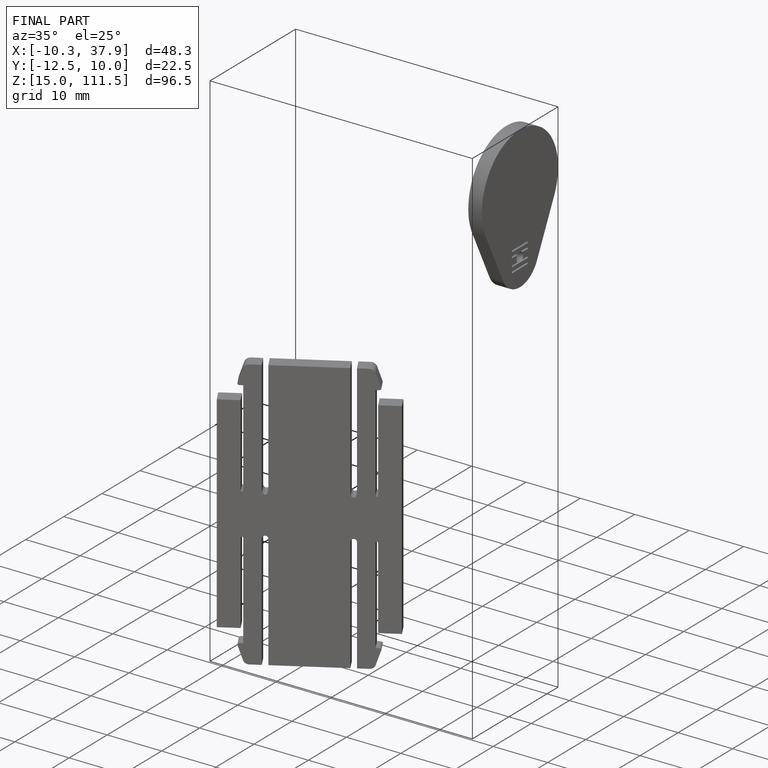
[diagram: finished part — iso view with bounding-box wireframe]
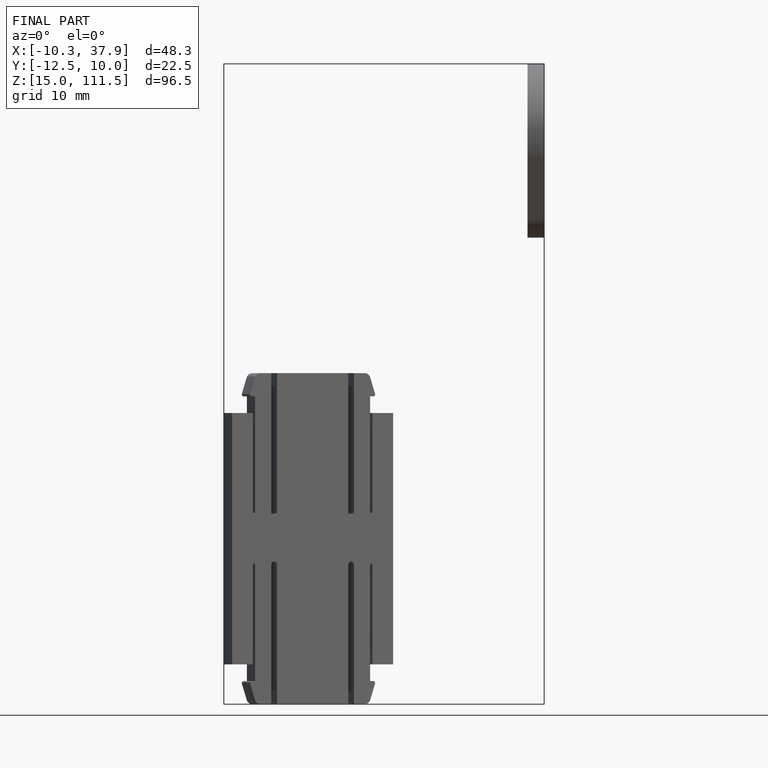
[diagram: finished part — front view with bounding-box wireframe]
